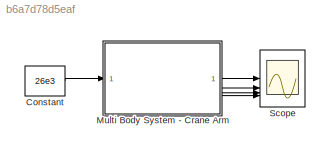
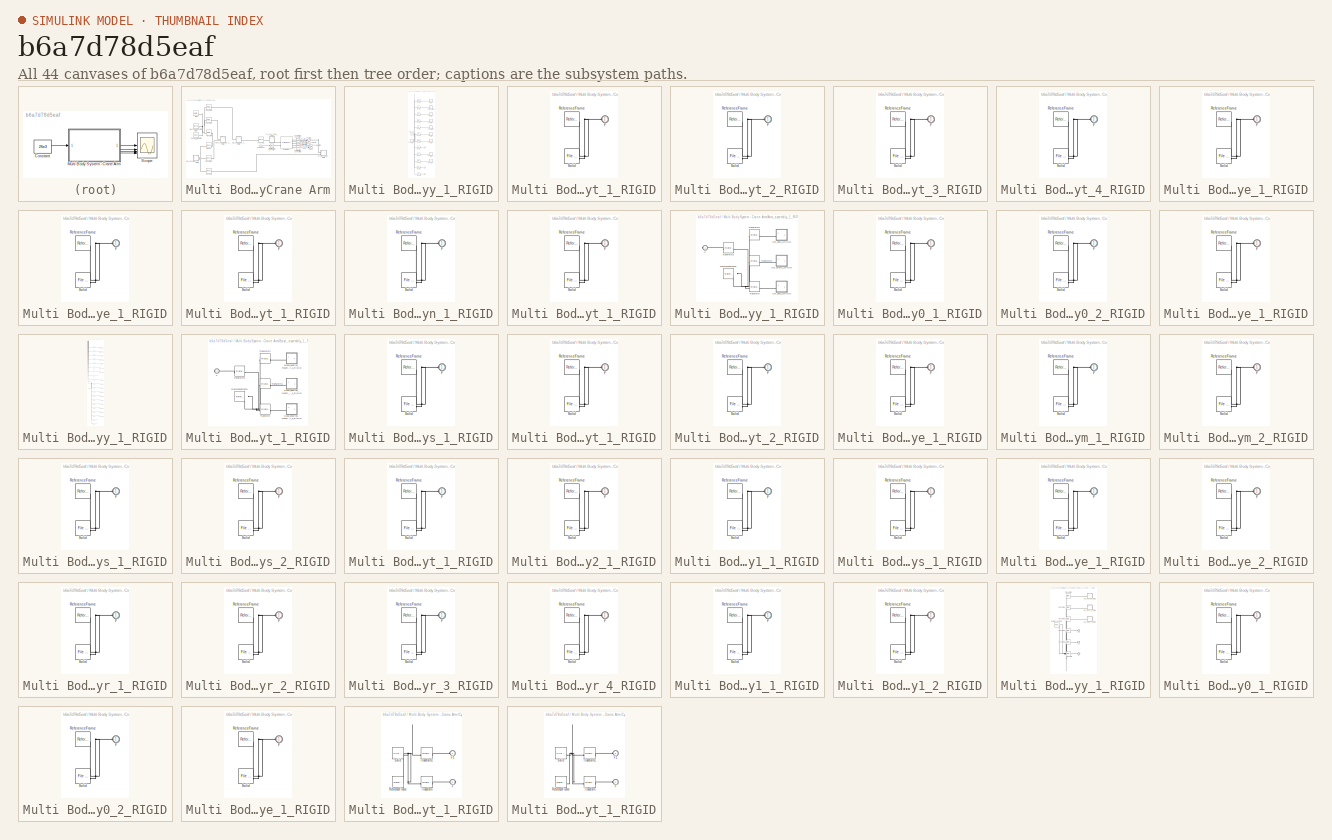
[diagram: thumbnail index - all 44 canvases of the model, root first then tree order]
MODEL slx_b6a7d78d5eaf
KIND model
CONFIG AbsTol = auto
CONFIG EnableMultiTasking = off
CONFIG FixedStep = auto
CONFIG MaxStep = auto
CONFIG MinStep = auto
CONFIG RelTol = 1e-3
CONFIG SampleTimeConstraint = Unconstrained
CONFIG SolverName = VariableStepAuto
CONFIG StartTime = 0.0
CONFIG StopTime = 2.7
WORKSPACE source: external: MATLAB File  (data not in archive)
BLOCK [Constant] Constant
  Value = 26e3
  VectorParams1D = off
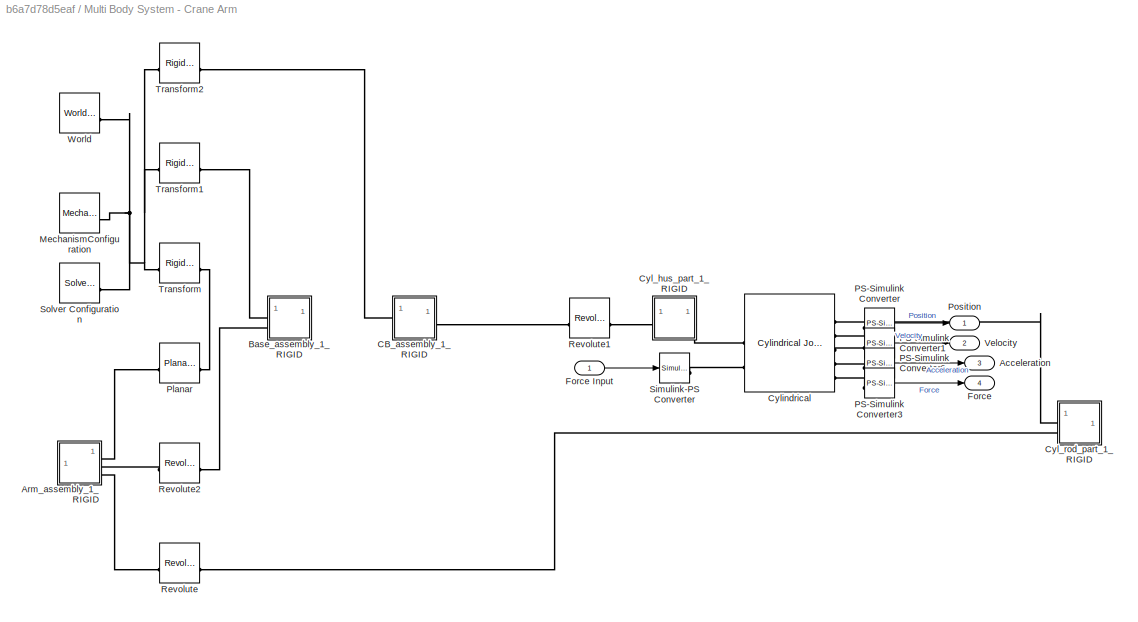
BLOCK [SubSystem] Multi Body System - Crane Arm
BLOCK [Outport] Multi Body System - Crane Arm/Acceleration
  Port = 3
  VectorParamsAs1DForOutWhenUnconnected = off
BLOCK [SubSystem] Multi Body System - Crane Arm/Arm_assembly_1_RIGID
BLOCK [SubSystem] Multi Body System - Crane Arm/Arm_assembly_1_RIGID/Arm_ballast_1_RIGID
BLOCK [PMIOPort] Multi Body System - Crane Arm/Arm_assembly_1_RIGID/Arm_ballast_1_RIGID/F
  Side = Left
BLOCK [Reference] Multi Body System - Crane Arm/Arm_assembly_1_RIGID/Arm_ballast_1_RIGID/ReferenceFrame  REF=sm_lib/Frames and
Transforms/Reference
Frame
  SourceBlock = sm_lib/Frames and\nTransforms/Reference\nFrame
  SourceType = Reference\nFrame
BLOCK [Reference] Multi Body System - Crane Arm/Arm_assembly_1_RIGID/Arm_ballast_1_RIGID/Solid  REF=sm_lib/Body Elements/File Solid
  SourceBlock = sm_lib/Body Elements/File Solid
  SourceType = File Solid
BLOCK [SubSystem] Multi Body System - Crane Arm/Arm_assembly_1_RIGID/Arm_ballast_2_RIGID
BLOCK [PMIOPort] Multi Body System - Crane Arm/Arm_assembly_1_RIGID/Arm_ballast_2_RIGID/F
  Side = Left
BLOCK [Reference] Multi Body System - Crane Arm/Arm_assembly_1_RIGID/Arm_ballast_2_RIGID/ReferenceFrame  REF=sm_lib/Frames and
Transforms/Reference
Frame
  SourceBlock = sm_lib/Frames and\nTransforms/Reference\nFrame
  SourceType = Reference\nFrame
BLOCK [Reference] Multi Body System - Crane Arm/Arm_assembly_1_RIGID/Arm_ballast_2_RIGID/Solid  REF=sm_lib/Body Elements/File Solid
  SourceBlock = sm_lib/Body Elements/File Solid
  SourceType = File Solid
BLOCK [SubSystem] Multi Body System - Crane Arm/Arm_assembly_1_RIGID/Arm_ballast_3_RIGID
BLOCK [PMIOPort] Multi Body System - Crane Arm/Arm_assembly_1_RIGID/Arm_ballast_3_RIGID/F
  Side = Left
BLOCK [Reference] Multi Body System - Crane Arm/Arm_assembly_1_RIGID/Arm_ballast_3_RIGID/ReferenceFrame  REF=sm_lib/Frames and
Transforms/Reference
Frame
  SourceBlock = sm_lib/Frames and\nTransforms/Reference\nFrame
  SourceType = Reference\nFrame
BLOCK [Reference] Multi Body System - Crane Arm/Arm_assembly_1_RIGID/Arm_ballast_3_RIGID/Solid  REF=sm_lib/Body Elements/File Solid
  SourceBlock = sm_lib/Body Elements/File Solid
  SourceType = File Solid
BLOCK [SubSystem] Multi Body System - Crane Arm/Arm_assembly_1_RIGID/Arm_ballast_4_RIGID
BLOCK [PMIOPort] Multi Body System - Crane Arm/Arm_assembly_1_RIGID/Arm_ballast_4_RIGID/F
  Side = Left
BLOCK [Reference] Multi Body System - Crane Arm/Arm_assembly_1_RIGID/Arm_ballast_4_RIGID/ReferenceFrame  REF=sm_lib/Frames and
Transforms/Reference
Frame
  SourceBlock = sm_lib/Frames and\nTransforms/Reference\nFrame
  SourceType = Reference\nFrame
BLOCK [Reference] Multi Body System - Crane Arm/Arm_assembly_1_RIGID/Arm_ballast_4_RIGID/Solid  REF=sm_lib/Body Elements/File Solid
  SourceBlock = sm_lib/Body Elements/File Solid
  SourceType = File Solid
BLOCK [SubSystem] Multi Body System - Crane Arm/Arm_assembly_1_RIGID/Arm_ballast_fixture_1_RIGID
BLOCK [PMIOPort] Multi Body System - Crane Arm/Arm_assembly_1_RIGID/Arm_ballast_fixture_1_RIGID/F
  Side = Left
BLOCK [Reference] Multi Body System - Crane Arm/Arm_assembly_1_RIGID/Arm_ballast_fixture_1_RIGID/ReferenceFrame  REF=sm_lib/Frames and
Transforms/Reference
Frame
  SourceBlock = sm_lib/Frames and\nTransforms/Reference\nFrame
  SourceType = Reference\nFrame
BLOCK [Reference] Multi Body System - Crane Arm/Arm_assembly_1_RIGID/Arm_ballast_fixture_1_RIGID/Solid  REF=sm_lib/Body Elements/File Solid
  SourceBlock = sm_lib/Body Elements/File Solid
  SourceType = File Solid
BLOCK [SubSystem] Multi Body System - Crane Arm/Arm_assembly_1_RIGID/Arm_endplate_1_RIGID
BLOCK [PMIOPort] Multi Body System - Crane Arm/Arm_assembly_1_RIGID/Arm_endplate_1_RIGID/F
  Side = Left
BLOCK [Reference] Multi Body System - Crane Arm/Arm_assembly_1_RIGID/Arm_endplate_1_RIGID/ReferenceFrame  REF=sm_lib/Frames and
Transforms/Reference
Frame
  SourceBlock = sm_lib/Frames and\nTransforms/Reference\nFrame
  SourceType = Reference\nFrame
BLOCK [Reference] Multi Body System - Crane Arm/Arm_assembly_1_RIGID/Arm_endplate_1_RIGID/Solid  REF=sm_lib/Body Elements/File Solid
  SourceBlock = sm_lib/Body Elements/File Solid
  SourceType = File Solid
BLOCK [SubSystem] Multi Body System - Crane Arm/Arm_assembly_1_RIGID/Arm_pipe_reinforcement_1_RIGID
BLOCK [PMIOPort] Multi Body System - Crane Arm/Arm_assembly_1_RIGID/Arm_pipe_reinforcement_1_RIGID/F
  Side = Left
BLOCK [Reference] Multi Body System - Crane Arm/Arm_assembly_1_RIGID/Arm_pipe_reinforcement_1_RIGID/ReferenceFrame  REF=sm_lib/Frames and
Transforms/Reference
Frame
  SourceBlock = sm_lib/Frames and\nTransforms/Reference\nFrame
  SourceType = Reference\nFrame
BLOCK [Reference] Multi Body System - Crane Arm/Arm_assembly_1_RIGID/Arm_pipe_reinforcement_1_RIGID/Solid  REF=sm_lib/Body Elements/File Solid
  SourceBlock = sm_lib/Body Elements/File Solid
  SourceType = File Solid
BLOCK [SubSystem] Multi Body System - Crane Arm/Arm_assembly_1_RIGID/Arm_profil_main_1_RIGID
BLOCK [PMIOPort] Multi Body System - Crane Arm/Arm_assembly_1_RIGID/Arm_profil_main_1_RIGID/F
  Side = Left
BLOCK [Reference] Multi Body System - Crane Arm/Arm_assembly_1_RIGID/Arm_profil_main_1_RIGID/ReferenceFrame  REF=sm_lib/Frames and
Transforms/Reference
Frame
  SourceBlock = sm_lib/Frames and\nTransforms/Reference\nFrame
  SourceType = Reference\nFrame
BLOCK [Reference] Multi Body System - Crane Arm/Arm_assembly_1_RIGID/Arm_profil_main_1_RIGID/Solid  REF=sm_lib/Body Elements/File Solid
  SourceBlock = sm_lib/Body Elements/File Solid
  SourceType = File Solid
BLOCK [SubSystem] Multi Body System - Crane Arm/Arm_assembly_1_RIGID/Arm_shaft_1_RIGID
BLOCK [PMIOPort] Multi Body System - Crane Arm/Arm_assembly_1_RIGID/Arm_shaft_1_RIGID/F
  Side = Left
BLOCK [Reference] Multi Body System - Crane Arm/Arm_assembly_1_RIGID/Arm_shaft_1_RIGID/ReferenceFrame  REF=sm_lib/Frames and
Transforms/Reference
Frame
  SourceBlock = sm_lib/Frames and\nTransforms/Reference\nFrame
  SourceType = Reference\nFrame
BLOCK [Reference] Multi Body System - Crane Arm/Arm_assembly_1_RIGID/Arm_shaft_1_RIGID/Solid  REF=sm_lib/Body Elements/File Solid
  SourceBlock = sm_lib/Body Elements/File Solid
  SourceType = File Solid
BLOCK [SubSystem] Multi Body System - Crane Arm/Arm_assembly_1_RIGID/CB_assembly_1_RIGID
BLOCK [SubSystem] Multi Body System - Crane Arm/Arm_assembly_1_RIGID/CB_assembly_1_RIGID/CB_850_1_RIGID
BLOCK [PMIOPort] Multi Body System - Crane Arm/Arm_assembly_1_RIGID/CB_assembly_1_RIGID/CB_850_1_RIGID/F
  Side = Left
BLOCK [Reference] Multi Body System - Crane Arm/Arm_assembly_1_RIGID/CB_assembly_1_RIGID/CB_850_1_RIGID/ReferenceFrame  REF=sm_lib/Frames and
Transforms/Reference
Frame
  SourceBlock = sm_lib/Frames and\nTransforms/Reference\nFrame
  SourceType = Reference\nFrame
BLOCK [Reference] Multi Body System - Crane Arm/Arm_assembly_1_RIGID/CB_assembly_1_RIGID/CB_850_1_RIGID/Solid  REF=sm_lib/Body Elements/File Solid
  SourceBlock = sm_lib/Body Elements/File Solid
  SourceType = File Solid
BLOCK [SubSystem] Multi Body System - Crane Arm/Arm_assembly_1_RIGID/CB_assembly_1_RIGID/CB_850_2_RIGID
BLOCK [PMIOPort] Multi Body System - Crane Arm/Arm_assembly_1_RIGID/CB_assembly_1_RIGID/CB_850_2_RIGID/F
  Side = Left
BLOCK [Reference] Multi Body System - Crane Arm/Arm_assembly_1_RIGID/CB_assembly_1_RIGID/CB_850_2_RIGID/ReferenceFrame  REF=sm_lib/Frames and
Transforms/Reference
Frame
  SourceBlock = sm_lib/Frames and\nTransforms/Reference\nFrame
  SourceType = Reference\nFrame
BLOCK [Reference] Multi Body System - Crane Arm/Arm_assembly_1_RIGID/CB_assembly_1_RIGID/CB_850_2_RIGID/Solid  REF=sm_lib/Body Elements/File Solid
  SourceBlock = sm_lib/Body Elements/File Solid
  SourceType = File Solid
BLOCK [SubSystem] Multi Body System - Crane Arm/Arm_assembly_1_RIGID/CB_assembly_1_RIGID/CB_plate_1_RIGID
BLOCK [PMIOPort] Multi Body System - Crane Arm/Arm_assembly_1_RIGID/CB_assembly_1_RIGID/CB_plate_1_RIGID/F
  Side = Left
BLOCK [Reference] Multi Body System - Crane Arm/Arm_assembly_1_RIGID/CB_assembly_1_RIGID/CB_plate_1_RIGID/ReferenceFrame  REF=sm_lib/Frames and
Transforms/Reference
Frame
  SourceBlock = sm_lib/Frames and\nTransforms/Reference\nFrame
  SourceType = Reference\nFrame
BLOCK [Reference] Multi Body System - Crane Arm/Arm_assembly_1_RIGID/CB_assembly_1_RIGID/CB_plate_1_RIGID/Solid  REF=sm_lib/Body Elements/File Solid
  SourceBlock = sm_lib/Body Elements/File Solid
  SourceType = File Solid
BLOCK [PMIOPort] Multi Body System - Crane Arm/Arm_assembly_1_RIGID/CB_assembly_1_RIGID/F
  Side = Right
BLOCK [Reference] Multi Body System - Crane Arm/Arm_assembly_1_RIGID/CB_assembly_1_RIGID/ReferenceFrame  REF=sm_lib/Frames and
Transforms/Reference
Frame
  SourceBlock = sm_lib/Frames and\nTransforms/Reference\nFrame
  SourceType = Reference\nFrame
BLOCK [Reference] Multi Body System - Crane Arm/Arm_assembly_1_RIGID/CB_assembly_1_RIGID/Transform  REF=sm_lib/Frames and
Transforms/Rigid
Transform
  SourceBlock = sm_lib/Frames and\nTransforms/Rigid\nTransform
  SourceType = Rigid\nTransform
BLOCK [Reference] Multi Body System - Crane Arm/Arm_assembly_1_RIGID/CB_assembly_1_RIGID/Transform1  REF=sm_lib/Frames and
Transforms/Rigid
Transform
  SourceBlock = sm_lib/Frames and\nTransforms/Rigid\nTransform
  SourceType = Rigid\nTransform
BLOCK [Reference] Multi Body System - Crane Arm/Arm_assembly_1_RIGID/CB_assembly_1_RIGID/Transform2  REF=sm_lib/Frames and
Transforms/Rigid
Transform
  SourceBlock = sm_lib/Frames and\nTransforms/Rigid\nTransform
  SourceType = Rigid\nTransform
BLOCK [Reference] Multi Body System - Crane Arm/Arm_assembly_1_RIGID/CB_assembly_1_RIGID/Transform3  REF=sm_lib/Frames and
Transforms/Rigid
Transform
  SourceBlock = sm_lib/Frames and\nTransforms/Rigid\nTransform
  SourceType = Rigid\nTransform
BLOCK [PMIOPort] Multi Body System - Crane Arm/Arm_assembly_1_RIGID/F
  Port = 3
  Side = Right
BLOCK [PMIOPort] Multi Body System - Crane Arm/Arm_assembly_1_RIGID/F1
  Port = 2
  Side = Right
BLOCK [PMIOPort] Multi Body System - Crane Arm/Arm_assembly_1_RIGID/F2
  Side = Right
BLOCK [Reference] Multi Body System - Crane Arm/Arm_assembly_1_RIGID/ReferenceFrame  REF=sm_lib/Frames and
Transforms/Reference
Frame
  SourceBlock = sm_lib/Frames and\nTransforms/Reference\nFrame
  SourceType = Reference\nFrame
BLOCK [Reference] Multi Body System - Crane Arm/Arm_assembly_1_RIGID/Transform  REF=sm_lib/Frames and
Transforms/Rigid
Transform
  SourceBlock = sm_lib/Frames and\nTransforms/Rigid\nTransform
  SourceType = Rigid\nTransform
BLOCK [Reference] Multi Body System - Crane Arm/Arm_assembly_1_RIGID/Transform1  REF=sm_lib/Frames and
Transforms/Rigid
Transform
  SourceBlock = sm_lib/Frames and\nTransforms/Rigid\nTransform
  SourceType = Rigid\nTransform
BLOCK [Reference] Multi Body System - Crane Arm/Arm_assembly_1_RIGID/Transform10  REF=sm_lib/Frames and
Transforms/Rigid
Transform
  SourceBlock = sm_lib/Frames and\nTransforms/Rigid\nTransform
  SourceType = Rigid\nTransform
BLOCK [Reference] Multi Body System - Crane Arm/Arm_assembly_1_RIGID/Transform11  REF=sm_lib/Frames and
Transforms/Rigid
Transform
  SourceBlock = sm_lib/Frames and\nTransforms/Rigid\nTransform
  SourceType = Rigid\nTransform
BLOCK [Reference] Multi Body System - Crane Arm/Arm_assembly_1_RIGID/Transform2  REF=sm_lib/Frames and
Transforms/Rigid
Transform
  SourceBlock = sm_lib/Frames and\nTransforms/Rigid\nTransform
  SourceType = Rigid\nTransform
BLOCK [Reference] Multi Body System - Crane Arm/Arm_assembly_1_RIGID/Transform3  REF=sm_lib/Frames and
Transforms/Rigid
Transform
  SourceBlock = sm_lib/Frames and\nTransforms/Rigid\nTransform
  SourceType = Rigid\nTransform
BLOCK [Reference] Multi Body System - Crane Arm/Arm_assembly_1_RIGID/Transform4  REF=sm_lib/Frames and
Transforms/Rigid
Transform
  SourceBlock = sm_lib/Frames and\nTransforms/Rigid\nTransform
  SourceType = Rigid\nTransform
BLOCK [Reference] Multi Body System - Crane Arm/Arm_assembly_1_RIGID/Transform5  REF=sm_lib/Frames and
Transforms/Rigid
Transform
  SourceBlock = sm_lib/Frames and\nTransforms/Rigid\nTransform
  SourceType = Rigid\nTransform
BLOCK [Reference] Multi Body System - Crane Arm/Arm_assembly_1_RIGID/Transform6  REF=sm_lib/Frames and
Transforms/Rigid
Transform
  SourceBlock = sm_lib/Frames and\nTransforms/Rigid\nTransform
  SourceType = Rigid\nTransform
BLOCK [Reference] Multi Body System - Crane Arm/Arm_assembly_1_RIGID/Transform7  REF=sm_lib/Frames and
Transforms/Rigid
Transform
  SourceBlock = sm_lib/Frames and\nTransforms/Rigid\nTransform
  SourceType = Rigid\nTransform
BLOCK [Reference] Multi Body System - Crane Arm/Arm_assembly_1_RIGID/Transform8  REF=sm_lib/Frames and
Transforms/Rigid
Transform
  SourceBlock = sm_lib/Frames and\nTransforms/Rigid\nTransform
  SourceType = Rigid\nTransform
BLOCK [Reference] Multi Body System - Crane Arm/Arm_assembly_1_RIGID/Transform9  REF=sm_lib/Frames and
Transforms/Rigid
Transform
  SourceBlock = sm_lib/Frames and\nTransforms/Rigid\nTransform
  SourceType = Rigid\nTransform
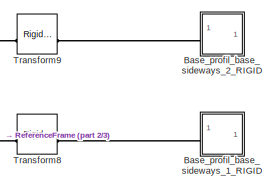
[diagram: Multi Body System - Crane Arm/Base_assembly_1_RIGID - part 1/3, top center region]
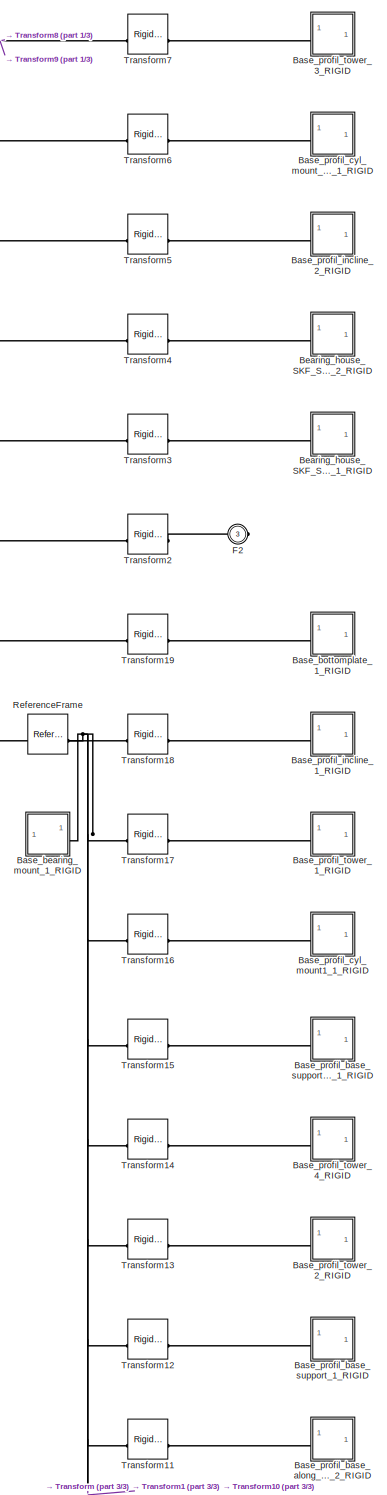
[diagram: Multi Body System - Crane Arm/Base_assembly_1_RIGID - part 2/3, full width, middle band]
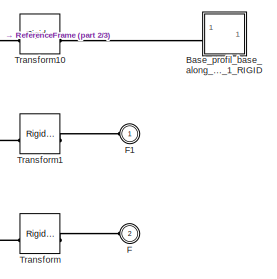
[diagram: Multi Body System - Crane Arm/Base_assembly_1_RIGID - part 3/3, bottom center region]
BLOCK [SubSystem] Multi Body System - Crane Arm/Base_assembly_1_RIGID
BLOCK [SubSystem] Multi Body System - Crane Arm/Base_assembly_1_RIGID/Base_bearing_mount_1_RIGID
BLOCK [SubSystem] Multi Body System - Crane Arm/Base_assembly_1_RIGID/Base_bearing_mount_1_RIGID/Base_bearing_mount_sideways_1_RIGID
BLOCK [PMIOPort] Multi Body System - Crane Arm/Base_assembly_1_RIGID/Base_bearing_mount_1_RIGID/Base_bearing_mount_sideways_1_RIGID/F
  Side = Left
BLOCK [Reference] Multi Body System - Crane Arm/Base_assembly_1_RIGID/Base_bearing_mount_1_RIGID/Base_bearing_mount_sideways_1_RIGID/ReferenceFrame  REF=sm_lib/Frames and
Transforms/Reference
Frame
  SourceBlock = sm_lib/Frames and\nTransforms/Reference\nFrame
  SourceType = Reference\nFrame
BLOCK [Reference] Multi Body System - Crane Arm/Base_assembly_1_RIGID/Base_bearing_mount_1_RIGID/Base_bearing_mount_sideways_1_RIGID/Solid  REF=sm_lib/Body Elements/File Solid
  SourceBlock = sm_lib/Body Elements/File Solid
  SourceType = File Solid
BLOCK [SubSystem] Multi Body System - Crane Arm/Base_assembly_1_RIGID/Base_bearing_mount_1_RIGID/Base_bearing_mount_support_1_RIGID
BLOCK [PMIOPort] Multi Body System - Crane Arm/Base_assembly_1_RIGID/Base_bearing_mount_1_RIGID/Base_bearing_mount_support_1_RIGID/F
  Side = Left
BLOCK [Reference] Multi Body System - Crane Arm/Base_assembly_1_RIGID/Base_bearing_mount_1_RIGID/Base_bearing_mount_support_1_RIGID/ReferenceFrame  REF=sm_lib/Frames and
Transforms/Reference
Frame
  SourceBlock = sm_lib/Frames and\nTransforms/Reference\nFrame
  SourceType = Reference\nFrame
BLOCK [Reference] Multi Body System - Crane Arm/Base_assembly_1_RIGID/Base_bearing_mount_1_RIGID/Base_bearing_mount_support_1_RIGID/Solid  REF=sm_lib/Body Elements/File Solid
  SourceBlock = sm_lib/Body Elements/File Solid
  SourceType = File Solid
BLOCK [SubSystem] Multi Body System - Crane Arm/Base_assembly_1_RIGID/Base_bearing_mount_1_RIGID/Base_bearing_mount_support_2_RIGID
BLOCK [PMIOPort] Multi Body System - Crane Arm/Base_assembly_1_RIGID/Base_bearing_mount_1_RIGID/Base_bearing_mount_support_2_RIGID/F
  Side = Left
BLOCK [Reference] Multi Body System - Crane Arm/Base_assembly_1_RIGID/Base_bearing_mount_1_RIGID/Base_bearing_mount_support_2_RIGID/ReferenceFrame  REF=sm_lib/Frames and
Transforms/Reference
Frame
  SourceBlock = sm_lib/Frames and\nTransforms/Reference\nFrame
  SourceType = Reference\nFrame
BLOCK [Reference] Multi Body System - Crane Arm/Base_assembly_1_RIGID/Base_bearing_mount_1_RIGID/Base_bearing_mount_support_2_RIGID/Solid  REF=sm_lib/Body Elements/File Solid
  SourceBlock = sm_lib/Body Elements/File Solid
  SourceType = File Solid
BLOCK [PMIOPort] Multi Body System - Crane Arm/Base_assembly_1_RIGID/Base_bearing_mount_1_RIGID/F
  Side = Right
BLOCK [Reference] Multi Body System - Crane Arm/Base_assembly_1_RIGID/Base_bearing_mount_1_RIGID/ReferenceFrame  REF=sm_lib/Frames and
Transforms/Reference
Frame
  SourceBlock = sm_lib/Frames and\nTransforms/Reference\nFrame
  SourceType = Reference\nFrame
BLOCK [Reference] Multi Body System - Crane Arm/Base_assembly_1_RIGID/Base_bearing_mount_1_RIGID/Transform  REF=sm_lib/Frames and
Transforms/Rigid
Transform
  SourceBlock = sm_lib/Frames and\nTransforms/Rigid\nTransform
  SourceType = Rigid\nTransform
BLOCK [Reference] Multi Body System - Crane Arm/Base_assembly_1_RIGID/Base_bearing_mount_1_RIGID/Transform1  REF=sm_lib/Frames and
Transforms/Rigid
Transform
  SourceBlock = sm_lib/Frames and\nTransforms/Rigid\nTransform
  SourceType = Rigid\nTransform
BLOCK [Reference] Multi Body System - Crane Arm/Base_assembly_1_RIGID/Base_bearing_mount_1_RIGID/Transform2  REF=sm_lib/Frames and
Transforms/Rigid
Transform
  SourceBlock = sm_lib/Frames and\nTransforms/Rigid\nTransform
  SourceType = Rigid\nTransform
BLOCK [Reference] Multi Body System - Crane Arm/Base_assembly_1_RIGID/Base_bearing_mount_1_RIGID/Transform3  REF=sm_lib/Frames and
Transforms/Rigid
Transform
  SourceBlock = sm_lib/Frames and\nTransforms/Rigid\nTransform
  SourceType = Rigid\nTransform
BLOCK [SubSystem] Multi Body System - Crane Arm/Base_assembly_1_RIGID/Base_bottomplate_1_RIGID
BLOCK [PMIOPort] Multi Body System - Crane Arm/Base_assembly_1_RIGID/Base_bottomplate_1_RIGID/F
  Side = Left
BLOCK [Reference] Multi Body System - Crane Arm/Base_assembly_1_RIGID/Base_bottomplate_1_RIGID/ReferenceFrame  REF=sm_lib/Frames and
Transforms/Reference
Frame
  SourceBlock = sm_lib/Frames and\nTransforms/Reference\nFrame
  SourceType = Reference\nFrame
BLOCK [Reference] Multi Body System - Crane Arm/Base_assembly_1_RIGID/Base_bottomplate_1_RIGID/Solid  REF=sm_lib/Body Elements/File Solid
  SourceBlock = sm_lib/Body Elements/File Solid
  SourceType = File Solid
BLOCK [SubSystem] Multi Body System - Crane Arm/Base_assembly_1_RIGID/Base_profil_base_along_arm_1_RIGID
BLOCK [PMIOPort] Multi Body System - Crane Arm/Base_assembly_1_RIGID/Base_profil_base_along_arm_1_RIGID/F
  Side = Left
BLOCK [Reference] Multi Body System - Crane Arm/Base_assembly_1_RIGID/Base_profil_base_along_arm_1_RIGID/ReferenceFrame  REF=sm_lib/Frames and
Transforms/Reference
Frame
  SourceBlock = sm_lib/Frames and\nTransforms/Reference\nFrame
  SourceType = Reference\nFrame
BLOCK [Reference] Multi Body System - Crane Arm/Base_assembly_1_RIGID/Base_profil_base_along_arm_1_RIGID/Solid  REF=sm_lib/Body Elements/File Solid
  SourceBlock = sm_lib/Body Elements/File Solid
  SourceType = File Solid
BLOCK [SubSystem] Multi Body System - Crane Arm/Base_assembly_1_RIGID/Base_profil_base_along_arm_2_RIGID
BLOCK [PMIOPort] Multi Body System - Crane Arm/Base_assembly_1_RIGID/Base_profil_base_along_arm_2_RIGID/F
  Side = Left
BLOCK [Reference] Multi Body System - Crane Arm/Base_assembly_1_RIGID/Base_profil_base_along_arm_2_RIGID/ReferenceFrame  REF=sm_lib/Frames and
Transforms/Reference
Frame
  SourceBlock = sm_lib/Frames and\nTransforms/Reference\nFrame
  SourceType = Reference\nFrame
BLOCK [Reference] Multi Body System - Crane Arm/Base_assembly_1_RIGID/Base_profil_base_along_arm_2_RIGID/Solid  REF=sm_lib/Body Elements/File Solid
  SourceBlock = sm_lib/Body Elements/File Solid
  SourceType = File Solid
BLOCK [SubSystem] Multi Body System - Crane Arm/Base_assembly_1_RIGID/Base_profil_base_sideways_1_RIGID
BLOCK [PMIOPort] Multi Body System - Crane Arm/Base_assembly_1_RIGID/Base_profil_base_sideways_1_RIGID/F
  Side = Left
BLOCK [Reference] Multi Body System - Crane Arm/Base_assembly_1_RIGID/Base_profil_base_sideways_1_RIGID/ReferenceFrame  REF=sm_lib/Frames and
Transforms/Reference
Frame
  SourceBlock = sm_lib/Frames and\nTransforms/Reference\nFrame
  SourceType = Reference\nFrame
BLOCK [Reference] Multi Body System - Crane Arm/Base_assembly_1_RIGID/Base_profil_base_sideways_1_RIGID/Solid  REF=sm_lib/Body Elements/File Solid
  SourceBlock = sm_lib/Body Elements/File Solid
  SourceType = File Solid
BLOCK [SubSystem] Multi Body System - Crane Arm/Base_assembly_1_RIGID/Base_profil_base_sideways_2_RIGID
BLOCK [PMIOPort] Multi Body System - Crane Arm/Base_assembly_1_RIGID/Base_profil_base_sideways_2_RIGID/F
  Side = Left
BLOCK [Reference] Multi Body System - Crane Arm/Base_assembly_1_RIGID/Base_profil_base_sideways_2_RIGID/ReferenceFrame  REF=sm_lib/Frames and
Transforms/Reference
Frame
  SourceBlock = sm_lib/Frames and\nTransforms/Reference\nFrame
  SourceType = Reference\nFrame
BLOCK [Reference] Multi Body System - Crane Arm/Base_assembly_1_RIGID/Base_profil_base_sideways_2_RIGID/Solid  REF=sm_lib/Body Elements/File Solid
  SourceBlock = sm_lib/Body Elements/File Solid
  SourceType = File Solid
BLOCK [SubSystem] Multi Body System - Crane Arm/Base_assembly_1_RIGID/Base_profil_base_support_1_RIGID
BLOCK [PMIOPort] Multi Body System - Crane Arm/Base_assembly_1_RIGID/Base_profil_base_support_1_RIGID/F
  Side = Left
BLOCK [Reference] Multi Body System - Crane Arm/Base_assembly_1_RIGID/Base_profil_base_support_1_RIGID/ReferenceFrame  REF=sm_lib/Frames and
Transforms/Reference
Frame
  SourceBlock = sm_lib/Frames and\nTransforms/Reference\nFrame
  SourceType = Reference\nFrame
BLOCK [Reference] Multi Body System - Crane Arm/Base_assembly_1_RIGID/Base_profil_base_support_1_RIGID/Solid  REF=sm_lib/Body Elements/File Solid
  SourceBlock = sm_lib/Body Elements/File Solid
  SourceType = File Solid
BLOCK [SubSystem] Multi Body System - Crane Arm/Base_assembly_1_RIGID/Base_profil_base_support_2_1_RIGID
BLOCK [PMIOPort] Multi Body System - Crane Arm/Base_assembly_1_RIGID/Base_profil_base_support_2_1_RIGID/F
  Side = Left
BLOCK [Reference] Multi Body System - Crane Arm/Base_assembly_1_RIGID/Base_profil_base_support_2_1_RIGID/ReferenceFrame  REF=sm_lib/Frames and
Transforms/Reference
Frame
  SourceBlock = sm_lib/Frames and\nTransforms/Reference\nFrame
  SourceType = Reference\nFrame
BLOCK [Reference] Multi Body System - Crane Arm/Base_assembly_1_RIGID/Base_profil_base_support_2_1_RIGID/Solid  REF=sm_lib/Body Elements/File Solid
  SourceBlock = sm_lib/Body Elements/File Solid
  SourceType = File Solid
BLOCK [SubSystem] Multi Body System - Crane Arm/Base_assembly_1_RIGID/Base_profil_cyl_mount1_1_RIGID
BLOCK [PMIOPort] Multi Body System - Crane Arm/Base_assembly_1_RIGID/Base_profil_cyl_mount1_1_RIGID/F
  Side = Left
BLOCK [Reference] Multi Body System - Crane Arm/Base_assembly_1_RIGID/Base_profil_cyl_mount1_1_RIGID/ReferenceFrame  REF=sm_lib/Frames and
Transforms/Reference
Frame
  SourceBlock = sm_lib/Frames and\nTransforms/Reference\nFrame
  SourceType = Reference\nFrame
BLOCK [Reference] Multi Body System - Crane Arm/Base_assembly_1_RIGID/Base_profil_cyl_mount1_1_RIGID/Solid  REF=sm_lib/Body Elements/File Solid
  SourceBlock = sm_lib/Body Elements/File Solid
  SourceType = File Solid
BLOCK [SubSystem] Multi Body System - Crane Arm/Base_assembly_1_RIGID/Base_profil_cyl_mount_support_sideways_1_RIGID
BLOCK [PMIOPort] Multi Body System - Crane Arm/Base_assembly_1_RIGID/Base_profil_cyl_mount_support_sideways_1_RIGID/F
  Side = Left
BLOCK [Reference] Multi Body System - Crane Arm/Base_assembly_1_RIGID/Base_profil_cyl_mount_support_sideways_1_RIGID/ReferenceFrame  REF=sm_lib/Frames and
Transforms/Reference
Frame
  SourceBlock = sm_lib/Frames and\nTransforms/Reference\nFrame
  SourceType = Reference\nFrame
BLOCK [Reference] Multi Body System - Crane Arm/Base_assembly_1_RIGID/Base_profil_cyl_mount_support_sideways_1_RIGID/Solid  REF=sm_lib/Body Elements/File Solid
  SourceBlock = sm_lib/Body Elements/File Solid
  SourceType = File Solid
BLOCK [SubSystem] Multi Body System - Crane Arm/Base_assembly_1_RIGID/Base_profil_incline_1_RIGID
BLOCK [PMIOPort] Multi Body System - Crane Arm/Base_assembly_1_RIGID/Base_profil_incline_1_RIGID/F
  Side = Left
BLOCK [Reference] Multi Body System - Crane Arm/Base_assembly_1_RIGID/Base_profil_incline_1_RIGID/ReferenceFrame  REF=sm_lib/Frames and
Transforms/Reference
Frame
  SourceBlock = sm_lib/Frames and\nTransforms/Reference\nFrame
  SourceType = Reference\nFrame
BLOCK [Reference] Multi Body System - Crane Arm/Base_assembly_1_RIGID/Base_profil_incline_1_RIGID/Solid  REF=sm_lib/Body Elements/File Solid
  SourceBlock = sm_lib/Body Elements/File Solid
  SourceType = File Solid
BLOCK [SubSystem] Multi Body System - Crane Arm/Base_assembly_1_RIGID/Base_profil_incline_2_RIGID
BLOCK [PMIOPort] Multi Body System - Crane Arm/Base_assembly_1_RIGID/Base_profil_incline_2_RIGID/F
  Side = Left
BLOCK [Reference] Multi Body System - Crane Arm/Base_assembly_1_RIGID/Base_profil_incline_2_RIGID/ReferenceFrame  REF=sm_lib/Frames and
Transforms/Reference
Frame
  SourceBlock = sm_lib/Frames and\nTransforms/Reference\nFrame
  SourceType = Reference\nFrame
BLOCK [Reference] Multi Body System - Crane Arm/Base_assembly_1_RIGID/Base_profil_incline_2_RIGID/Solid  REF=sm_lib/Body Elements/File Solid
  SourceBlock = sm_lib/Body Elements/File Solid
  SourceType = File Solid
BLOCK [SubSystem] Multi Body System - Crane Arm/Base_assembly_1_RIGID/Base_profil_tower_1_RIGID
BLOCK [PMIOPort] Multi Body System - Crane Arm/Base_assembly_1_RIGID/Base_profil_tower_1_RIGID/F
  Side = Left
BLOCK [Reference] Multi Body System - Crane Arm/Base_assembly_1_RIGID/Base_profil_tower_1_RIGID/ReferenceFrame  REF=sm_lib/Frames and
Transforms/Reference
Frame
  SourceBlock = sm_lib/Frames and\nTransforms/Reference\nFrame
  SourceType = Reference\nFrame
BLOCK [Reference] Multi Body System - Crane Arm/Base_assembly_1_RIGID/Base_profil_tower_1_RIGID/Solid  REF=sm_lib/Body Elements/File Solid
  SourceBlock = sm_lib/Body Elements/File Solid
  SourceType = File Solid
BLOCK [SubSystem] Multi Body System - Crane Arm/Base_assembly_1_RIGID/Base_profil_tower_2_RIGID
BLOCK [PMIOPort] Multi Body System - Crane Arm/Base_assembly_1_RIGID/Base_profil_tower_2_RIGID/F
  Side = Left
BLOCK [Reference] Multi Body System - Crane Arm/Base_assembly_1_RIGID/Base_profil_tower_2_RIGID/ReferenceFrame  REF=sm_lib/Frames and
Transforms/Reference
Frame
  SourceBlock = sm_lib/Frames and\nTransforms/Reference\nFrame
  SourceType = Reference\nFrame
BLOCK [Reference] Multi Body System - Crane Arm/Base_assembly_1_RIGID/Base_profil_tower_2_RIGID/Solid  REF=sm_lib/Body Elements/File Solid
  SourceBlock = sm_lib/Body Elements/File Solid
  SourceType = File Solid
BLOCK [SubSystem] Multi Body System - Crane Arm/Base_assembly_1_RIGID/Base_profil_tower_3_RIGID
BLOCK [PMIOPort] Multi Body System - Crane Arm/Base_assembly_1_RIGID/Base_profil_tower_3_RIGID/F
  Side = Left
BLOCK [Reference] Multi Body System - Crane Arm/Base_assembly_1_RIGID/Base_profil_tower_3_RIGID/ReferenceFrame  REF=sm_lib/Frames and
Transforms/Reference
Frame
  SourceBlock = sm_lib/Frames and\nTransforms/Reference\nFrame
  SourceType = Reference\nFrame
BLOCK [Reference] Multi Body System - Crane Arm/Base_assembly_1_RIGID/Base_profil_tower_3_RIGID/Solid  REF=sm_lib/Body Elements/File Solid
  SourceBlock = sm_lib/Body Elements/File Solid
  SourceType = File Solid
BLOCK [SubSystem] Multi Body System - Crane Arm/Base_assembly_1_RIGID/Base_profil_tower_4_RIGID
BLOCK [PMIOPort] Multi Body System - Crane Arm/Base_assembly_1_RIGID/Base_profil_tower_4_RIGID/F
  Side = Left
BLOCK [Reference] Multi Body System - Crane Arm/Base_assembly_1_RIGID/Base_profil_tower_4_RIGID/ReferenceFrame  REF=sm_lib/Frames and
Transforms/Reference
Frame
  SourceBlock = sm_lib/Frames and\nTransforms/Reference\nFrame
  SourceType = Reference\nFrame
BLOCK [Reference] Multi Body System - Crane Arm/Base_assembly_1_RIGID/Base_profil_tower_4_RIGID/Solid  REF=sm_lib/Body Elements/File Solid
  SourceBlock = sm_lib/Body Elements/File Solid
  SourceType = File Solid
BLOCK [SubSystem] Multi Body System - Crane Arm/Base_assembly_1_RIGID/Bearing_house_SKF_SNA_513_611_1_RIGID
BLOCK [PMIOPort] Multi Body System - Crane Arm/Base_assembly_1_RIGID/Bearing_house_SKF_SNA_513_611_1_RIGID/F
  Side = Left
BLOCK [Reference] Multi Body System - Crane Arm/Base_assembly_1_RIGID/Bearing_house_SKF_SNA_513_611_1_RIGID/ReferenceFrame  REF=sm_lib/Frames and
Transforms/Reference
Frame
  SourceBlock = sm_lib/Frames and\nTransforms/Reference\nFrame
  SourceType = Reference\nFrame
BLOCK [Reference] Multi Body System - Crane Arm/Base_assembly_1_RIGID/Bearing_house_SKF_SNA_513_611_1_RIGID/Solid  REF=sm_lib/Body Elements/File Solid
  SourceBlock = sm_lib/Body Elements/File Solid
  SourceType = File Solid
BLOCK [SubSystem] Multi Body System - Crane Arm/Base_assembly_1_RIGID/Bearing_house_SKF_SNA_513_611_2_RIGID
BLOCK [PMIOPort] Multi Body System - Crane Arm/Base_assembly_1_RIGID/Bearing_house_SKF_SNA_513_611_2_RIGID/F
  Side = Left
BLOCK [Reference] Multi Body System - Crane Arm/Base_assembly_1_RIGID/Bearing_house_SKF_SNA_513_611_2_RIGID/ReferenceFrame  REF=sm_lib/Frames and
Transforms/Reference
Frame
  SourceBlock = sm_lib/Frames and\nTransforms/Reference\nFrame
  SourceType = Reference\nFrame
BLOCK [Reference] Multi Body System - Crane Arm/Base_assembly_1_RIGID/Bearing_house_SKF_SNA_513_611_2_RIGID/Solid  REF=sm_lib/Body Elements/File Solid
  SourceBlock = sm_lib/Body Elements/File Solid
  SourceType = File Solid
BLOCK [PMIOPort] Multi Body System - Crane Arm/Base_assembly_1_RIGID/F
  Port = 2
  Side = Left
BLOCK [PMIOPort] Multi Body System - Crane Arm/Base_assembly_1_RIGID/F1
  Side = Left
BLOCK [PMIOPort] Multi Body System - Crane Arm/Base_assembly_1_RIGID/F2
  Port = 3
  Side = Right
BLOCK [Reference] Multi Body System - Crane Arm/Base_assembly_1_RIGID/ReferenceFrame  REF=sm_lib/Frames and
Transforms/Reference
Frame
  SourceBlock = sm_lib/Frames and\nTransforms/Reference\nFrame
  SourceType = Reference\nFrame
BLOCK [Reference] Multi Body System - Crane Arm/Base_assembly_1_RIGID/Transform  REF=sm_lib/Frames and
Transforms/Rigid
Transform
  SourceBlock = sm_lib/Frames and\nTransforms/Rigid\nTransform
  SourceType = Rigid\nTransform
BLOCK [Reference] Multi Body System - Crane Arm/Base_assembly_1_RIGID/Transform1  REF=sm_lib/Frames and
Transforms/Rigid
Transform
  SourceBlock = sm_lib/Frames and\nTransforms/Rigid\nTransform
  SourceType = Rigid\nTransform
BLOCK [Reference] Multi Body System - Crane Arm/Base_assembly_1_RIGID/Transform10  REF=sm_lib/Frames and
Transforms/Rigid
Transform
  SourceBlock = sm_lib/Frames and\nTransforms/Rigid\nTransform
  SourceType = Rigid\nTransform
BLOCK [Reference] Multi Body System - Crane Arm/Base_assembly_1_RIGID/Transform11  REF=sm_lib/Frames and
Transforms/Rigid
Transform
  SourceBlock = sm_lib/Frames and\nTransforms/Rigid\nTransform
  SourceType = Rigid\nTransform
BLOCK [Reference] Multi Body System - Crane Arm/Base_assembly_1_RIGID/Transform12  REF=sm_lib/Frames and
Transforms/Rigid
Transform
  SourceBlock = sm_lib/Frames and\nTransforms/Rigid\nTransform
  SourceType = Rigid\nTransform
BLOCK [Reference] Multi Body System - Crane Arm/Base_assembly_1_RIGID/Transform13  REF=sm_lib/Frames and
Transforms/Rigid
Transform
  SourceBlock = sm_lib/Frames and\nTransforms/Rigid\nTransform
  SourceType = Rigid\nTransform
BLOCK [Reference] Multi Body System - Crane Arm/Base_assembly_1_RIGID/Transform14  REF=sm_lib/Frames and
Transforms/Rigid
Transform
  SourceBlock = sm_lib/Frames and\nTransforms/Rigid\nTransform
  SourceType = Rigid\nTransform
BLOCK [Reference] Multi Body System - Crane Arm/Base_assembly_1_RIGID/Transform15  REF=sm_lib/Frames and
Transforms/Rigid
Transform
  SourceBlock = sm_lib/Frames and\nTransforms/Rigid\nTransform
  SourceType = Rigid\nTransform
BLOCK [Reference] Multi Body System - Crane Arm/Base_assembly_1_RIGID/Transform16  REF=sm_lib/Frames and
Transforms/Rigid
Transform
  SourceBlock = sm_lib/Frames and\nTransforms/Rigid\nTransform
  SourceType = Rigid\nTransform
BLOCK [Reference] Multi Body System - Crane Arm/Base_assembly_1_RIGID/Transform17  REF=sm_lib/Frames and
Transforms/Rigid
Transform
  SourceBlock = sm_lib/Frames and\nTransforms/Rigid\nTransform
  SourceType = Rigid\nTransform
BLOCK [Reference] Multi Body System - Crane Arm/Base_assembly_1_RIGID/Transform18  REF=sm_lib/Frames and
Transforms/Rigid
Transform
  SourceBlock = sm_lib/Frames and\nTransforms/Rigid\nTransform
  SourceType = Rigid\nTransform
BLOCK [Reference] Multi Body System - Crane Arm/Base_assembly_1_RIGID/Transform19  REF=sm_lib/Frames and
Transforms/Rigid
Transform
  SourceBlock = sm_lib/Frames and\nTransforms/Rigid\nTransform
  SourceType = Rigid\nTransform
BLOCK [Reference] Multi Body System - Crane Arm/Base_assembly_1_RIGID/Transform2  REF=sm_lib/Frames and
Transforms/Rigid
Transform
  SourceBlock = sm_lib/Frames and\nTransforms/Rigid\nTransform
  SourceType = Rigid\nTransform
BLOCK [Reference] Multi Body System - Crane Arm/Base_assembly_1_RIGID/Transform3  REF=sm_lib/Frames and
Transforms/Rigid
Transform
  SourceBlock = sm_lib/Frames and\nTransforms/Rigid\nTransform
  SourceType = Rigid\nTransform
BLOCK [Reference] Multi Body System - Crane Arm/Base_assembly_1_RIGID/Transform4  REF=sm_lib/Frames and
Transforms/Rigid
Transform
  SourceBlock = sm_lib/Frames and\nTransforms/Rigid\nTransform
  SourceType = Rigid\nTransform
BLOCK [Reference] Multi Body System - Crane Arm/Base_assembly_1_RIGID/Transform5  REF=sm_lib/Frames and
Transforms/Rigid
Transform
  SourceBlock = sm_lib/Frames and\nTransforms/Rigid\nTransform
  SourceType = Rigid\nTransform
BLOCK [Reference] Multi Body System - Crane Arm/Base_assembly_1_RIGID/Transform6  REF=sm_lib/Frames and
Transforms/Rigid
Transform
  SourceBlock = sm_lib/Frames and\nTransforms/Rigid\nTransform
  SourceType = Rigid\nTransform
BLOCK [Reference] Multi Body System - Crane Arm/Base_assembly_1_RIGID/Transform7  REF=sm_lib/Frames and
Transforms/Rigid
Transform
  SourceBlock = sm_lib/Frames and\nTransforms/Rigid\nTransform
  SourceType = Rigid\nTransform
BLOCK [Reference] Multi Body System - Crane Arm/Base_assembly_1_RIGID/Transform8  REF=sm_lib/Frames and
Transforms/Rigid
Transform
  SourceBlock = sm_lib/Frames and\nTransforms/Rigid\nTransform
  SourceType = Rigid\nTransform
BLOCK [Reference] Multi Body System - Crane Arm/Base_assembly_1_RIGID/Transform9  REF=sm_lib/Frames and
Transforms/Rigid
Transform
  SourceBlock = sm_lib/Frames and\nTransforms/Rigid\nTransform
  SourceType = Rigid\nTransform
BLOCK [SubSystem] Multi Body System - Crane Arm/CB_assembly_1_RIGID
BLOCK [SubSystem] Multi Body System - Crane Arm/CB_assembly_1_RIGID/CB_850_1_RIGID
BLOCK [PMIOPort] Multi Body System - Crane Arm/CB_assembly_1_RIGID/CB_850_1_RIGID/F
  Side = Left
BLOCK [Reference] Multi Body System - Crane Arm/CB_assembly_1_RIGID/CB_850_1_RIGID/ReferenceFrame  REF=sm_lib/Frames and
Transforms/Reference
Frame
  SourceBlock = sm_lib/Frames and\nTransforms/Reference\nFrame
  SourceType = Reference\nFrame
BLOCK [Reference] Multi Body System - Crane Arm/CB_assembly_1_RIGID/CB_850_1_RIGID/Solid  REF=sm_lib/Body Elements/File Solid
  SourceBlock = sm_lib/Body Elements/File Solid
  SourceType = File Solid
BLOCK [SubSystem] Multi Body System - Crane Arm/CB_assembly_1_RIGID/CB_850_2_RIGID
BLOCK [PMIOPort] Multi Body System - Crane Arm/CB_assembly_1_RIGID/CB_850_2_RIGID/F
  Side = Left
BLOCK [Reference] Multi Body System - Crane Arm/CB_assembly_1_RIGID/CB_850_2_RIGID/ReferenceFrame  REF=sm_lib/Frames and
Transforms/Reference
Frame
  SourceBlock = sm_lib/Frames and\nTransforms/Reference\nFrame
  SourceType = Reference\nFrame
BLOCK [Reference] Multi Body System - Crane Arm/CB_assembly_1_RIGID/CB_850_2_RIGID/Solid  REF=sm_lib/Body Elements/File Solid
  SourceBlock = sm_lib/Body Elements/File Solid
  SourceType = File Solid
BLOCK [SubSystem] Multi Body System - Crane Arm/CB_assembly_1_RIGID/CB_plate_1_RIGID
BLOCK [PMIOPort] Multi Body System - Crane Arm/CB_assembly_1_RIGID/CB_plate_1_RIGID/F
  Side = Left
BLOCK [Reference] Multi Body System - Crane Arm/CB_assembly_1_RIGID/CB_plate_1_RIGID/ReferenceFrame  REF=sm_lib/Frames and
Transforms/Reference
Frame
  SourceBlock = sm_lib/Frames and\nTransforms/Reference\nFrame
  SourceType = Reference\nFrame
BLOCK [Reference] Multi Body System - Crane Arm/CB_assembly_1_RIGID/CB_plate_1_RIGID/Solid  REF=sm_lib/Body Elements/File Solid
  SourceBlock = sm_lib/Body Elements/File Solid
  SourceType = File Solid
BLOCK [PMIOPort] Multi Body System - Crane Arm/CB_assembly_1_RIGID/F
  Port = 3
  Side = Right
BLOCK [PMIOPort] Multi Body System - Crane Arm/CB_assembly_1_RIGID/F1
  Port = 2
  Side = Left
BLOCK [PMIOPort] Multi Body System - Crane Arm/CB_assembly_1_RIGID/F2
  Side = Left
BLOCK [Reference] Multi Body System - Crane Arm/CB_assembly_1_RIGID/ReferenceFrame  REF=sm_lib/Frames and
Transforms/Reference
Frame
  SourceBlock = sm_lib/Frames and\nTransforms/Reference\nFrame
  SourceType = Reference\nFrame
BLOCK [Reference] Multi Body System - Crane Arm/CB_assembly_1_RIGID/Transform  REF=sm_lib/Frames and
Transforms/Rigid
Transform
  SourceBlock = sm_lib/Frames and\nTransforms/Rigid\nTransform
  SourceType = Rigid\nTransform
BLOCK [Reference] Multi Body System - Crane Arm/CB_assembly_1_RIGID/Transform1  REF=sm_lib/Frames and
Transforms/Rigid
Transform
  SourceBlock = sm_lib/Frames and\nTransforms/Rigid\nTransform
  SourceType = Rigid\nTransform
BLOCK [Reference] Multi Body System - Crane Arm/CB_assembly_1_RIGID/Transform2  REF=sm_lib/Frames and
Transforms/Rigid
Transform
  SourceBlock = sm_lib/Frames and\nTransforms/Rigid\nTransform
  SourceType = Rigid\nTransform
BLOCK [Reference] Multi Body System - Crane Arm/CB_assembly_1_RIGID/Transform3  REF=sm_lib/Frames and
Transforms/Rigid
Transform
  SourceBlock = sm_lib/Frames and\nTransforms/Rigid\nTransform
  SourceType = Rigid\nTransform
BLOCK [Reference] Multi Body System - Crane Arm/CB_assembly_1_RIGID/Transform4  REF=sm_lib/Frames and
Transforms/Rigid
Transform
  SourceBlock = sm_lib/Frames and\nTransforms/Rigid\nTransform
  SourceType = Rigid\nTransform
BLOCK [Reference] Multi Body System - Crane Arm/CB_assembly_1_RIGID/Transform5  REF=sm_lib/Frames and
Transforms/Rigid
Transform
  SourceBlock = sm_lib/Frames and\nTransforms/Rigid\nTransform
  SourceType = Rigid\nTransform
BLOCK [SubSystem] Multi Body System - Crane Arm/Cyl_hus_part_1_RIGID
BLOCK [PMIOPort] Multi Body System - Crane Arm/Cyl_hus_part_1_RIGID/F
  Port = 2
  Side = Right
BLOCK [PMIOPort] Multi Body System - Crane Arm/Cyl_hus_part_1_RIGID/F1
  Side = Left
BLOCK [Reference] Multi Body System - Crane Arm/Cyl_hus_part_1_RIGID/ReferenceFrame  REF=sm_lib/Frames and
Transforms/Reference
Frame
  SourceBlock = sm_lib/Frames and\nTransforms/Reference\nFrame
  SourceType = Reference\nFrame
BLOCK [Reference] Multi Body System - Crane Arm/Cyl_hus_part_1_RIGID/Solid  REF=sm_lib/Body Elements/File Solid
  SourceBlock = sm_lib/Body Elements/File Solid
  SourceType = File Solid
BLOCK [Reference] Multi Body System - Crane Arm/Cyl_hus_part_1_RIGID/Transform  REF=sm_lib/Frames and
Transforms/Rigid
Transform
  SourceBlock = sm_lib/Frames and\nTransforms/Rigid\nTransform
  SourceType = Rigid\nTransform
BLOCK [Reference] Multi Body System - Crane Arm/Cyl_hus_part_1_RIGID/Transform1  REF=sm_lib/Frames and
Transforms/Rigid
Transform
  SourceBlock = sm_lib/Frames and\nTransforms/Rigid\nTransform
  SourceType = Rigid\nTransform
BLOCK [SubSystem] Multi Body System - Crane Arm/Cyl_rod_part_1_RIGID
BLOCK [PMIOPort] Multi Body System - Crane Arm/Cyl_rod_part_1_RIGID/F
  Side = Left
BLOCK [PMIOPort] Multi Body System - Crane Arm/Cyl_rod_part_1_RIGID/F1
  Port = 2
  Side = Left
BLOCK [Reference] Multi Body System - Crane Arm/Cyl_rod_part_1_RIGID/ReferenceFrame  REF=sm_lib/Frames and
Transforms/Reference
Frame
  SourceBlock = sm_lib/Frames and\nTransforms/Reference\nFrame
  SourceType = Reference\nFrame
BLOCK [Reference] Multi Body System - Crane Arm/Cyl_rod_part_1_RIGID/Solid  REF=sm_lib/Body Elements/File Solid
  SourceBlock = sm_lib/Body Elements/File Solid
  SourceType = File Solid
BLOCK [Reference] Multi Body System - Crane Arm/Cyl_rod_part_1_RIGID/Transform  REF=sm_lib/Frames and
Transforms/Rigid
Transform
  SourceBlock = sm_lib/Frames and\nTransforms/Rigid\nTransform
  SourceType = Rigid\nTransform
BLOCK [Reference] Multi Body System - Crane Arm/Cyl_rod_part_1_RIGID/Transform1  REF=sm_lib/Frames and
Transforms/Rigid
Transform
  SourceBlock = sm_lib/Frames and\nTransforms/Rigid\nTransform
  SourceType = Rigid\nTransform
BLOCK [Reference] Multi Body System - Crane Arm/Cylindrical  REF=sm_lib/Joints/Cylindrical
Joint
  SourceBlock = sm_lib/Joints/Cylindrical\nJoint
  SourceType = Cylindrical\nJoint
BLOCK [Outport] Multi Body System - Crane Arm/Force
  Port = 4
  VectorParamsAs1DForOutWhenUnconnected = off
BLOCK [Inport] Multi Body System - Crane Arm/Force Input
BLOCK [Reference] Multi Body System - Crane Arm/MechanismConfiguration  REF=sm_lib/Utilities/Mechanism
Configuration
  SourceBlock = sm_lib/Utilities/Mechanism\nConfiguration
  SourceType = Mechanism\nConfiguration
BLOCK [Reference] Multi Body System - Crane Arm/PS-Simulink Converter  REF=nesl_utility/PS-Simulink
Converter
  SourceBlock = nesl_utility/PS-Simulink\nConverter
  SourceType = PS-Simulink\nConverter
BLOCK [Reference] Multi Body System - Crane Arm/PS-Simulink Converter1  REF=nesl_utility/PS-Simulink
Converter
  SourceBlock = nesl_utility/PS-Simulink\nConverter
  SourceType = PS-Simulink\nConverter
BLOCK [Reference] Multi Body System - Crane Arm/PS-Simulink Converter2  REF=nesl_utility/PS-Simulink
Converter
  SourceBlock = nesl_utility/PS-Simulink\nConverter
  SourceType = PS-Simulink\nConverter
BLOCK [Reference] Multi Body System - Crane Arm/PS-Simulink Converter3  REF=nesl_utility/PS-Simulink
Converter
  SourceBlock = nesl_utility/PS-Simulink\nConverter
  SourceType = PS-Simulink\nConverter
BLOCK [Reference] Multi Body System - Crane Arm/Planar  REF=sm_lib/Joints/Planar Joint
  SourceBlock = sm_lib/Joints/Planar Joint
  SourceType = Planar Joint
BLOCK [Outport] Multi Body System - Crane Arm/Position
  VectorParamsAs1DForOutWhenUnconnected = off
BLOCK [Reference] Multi Body System - Crane Arm/Revolute  REF=sm_lib/Joints/Revolute Joint
  SourceBlock = sm_lib/Joints/Revolute Joint
  SourceType = Revolute Joint
BLOCK [Reference] Multi Body System - Crane Arm/Revolute1  REF=sm_lib/Joints/Revolute Joint
  SourceBlock = sm_lib/Joints/Revolute Joint
  SourceType = Revolute Joint
BLOCK [Reference] Multi Body System - Crane Arm/Revolute2  REF=sm_lib/Joints/Revolute Joint
  SourceBlock = sm_lib/Joints/Revolute Joint
  SourceType = Revolute Joint
BLOCK [Reference] Multi Body System - Crane Arm/Simulink-PS Converter  REF=nesl_utility/Simulink-PS
Converter
  SourceBlock = nesl_utility/Simulink-PS\nConverter
  SourceType = Simulink-PS\nConverter
BLOCK [Reference] Multi Body System - Crane Arm/Solver Configuration  REF=nesl_utility/Solver
Configuration
  SourceBlock = nesl_utility/Solver\nConfiguration
  SourceType = Solver\nConfiguration
BLOCK [Reference] Multi Body System - Crane Arm/Transform  REF=sm_lib/Frames and
Transforms/Rigid
Transform
  SourceBlock = sm_lib/Frames and\nTransforms/Rigid\nTransform
  SourceType = Rigid\nTransform
BLOCK [Reference] Multi Body System - Crane Arm/Transform1  REF=sm_lib/Frames and
Transforms/Rigid
Transform
  SourceBlock = sm_lib/Frames and\nTransforms/Rigid\nTransform
  SourceType = Rigid\nTransform
BLOCK [Reference] Multi Body System - Crane Arm/Transform2  REF=sm_lib/Frames and
Transforms/Rigid
Transform
  SourceBlock = sm_lib/Frames and\nTransforms/Rigid\nTransform
  SourceType = Rigid\nTransform
BLOCK [Outport] Multi Body System - Crane Arm/Velocity
  Port = 2
  VectorParamsAs1DForOutWhenUnconnected = off
BLOCK [Reference] Multi Body System - Crane Arm/World  REF=sm_lib/Frames and
Transforms/World Frame
  SourceBlock = sm_lib/Frames and\nTransforms/World Frame
  SourceType = World Frame
BLOCK [Scope] Scope
  Floating = off
  NumInputPorts = 4
  ScopeSpecificationString = Simulink.scopes.TimeScopeBlockCfg('CurrentConfiguration', extmgr.ConfigurationSet(extmgr.Configuration('Core','General UI',true,'FigureColor',[1 1 1]),extmgr.Configuration('Core','Source UI',true),extmgr.Configuration('Sources','WiredSimulink',true),extmgr.Configuration('Visuals','Time Domain',true,'SerializedDisplays',{struct('MinYLimReal','-0.05751','MaxYLimReal','0.51763','YLabelReal','','MinYL...<+3556ch>
LINE Constant:1 -> Multi Body System - Crane Arm:1
LINE Multi Body System - Crane Arm/Force Input:1 -> Multi Body System - Crane Arm/Simulink-PS Converter:1
LINE Multi Body System - Crane Arm/PS-Simulink Converter1:1 -> Multi Body System - Crane Arm/Velocity:1
LINE Multi Body System - Crane Arm/PS-Simulink Converter2:1 -> Multi Body System - Crane Arm/Acceleration:1
LINE Multi Body System - Crane Arm/PS-Simulink Converter3:1 -> Multi Body System - Crane Arm/Force:1
LINE Multi Body System - Crane Arm/PS-Simulink Converter:1 -> Multi Body System - Crane Arm/Position:1
LINE Multi Body System - Crane Arm:1 -> Scope:1
LINE Multi Body System - Crane Arm:2 -> Scope:2
LINE Multi Body System - Crane Arm:3 -> Scope:3
LINE Multi Body System - Crane Arm:4 -> Scope:4
PNET net1: Multi Body System - Crane Arm/Arm_assembly_1_RIGID/Arm_ballast_1_RIGID/F:RConn1 -- Multi Body System - Crane Arm/Arm_assembly_1_RIGID/Arm_ballast_1_RIGID/ReferenceFrame:RConn1 -- Multi Body System - Crane Arm/Arm_assembly_1_RIGID/Arm_ballast_1_RIGID/Solid:RConn1
PLINE Multi Body System - Crane Arm/Arm_assembly_1_RIGID/Arm_ballast_1_RIGID:LConn1 -- Multi Body System - Crane Arm/Arm_assembly_1_RIGID/Transform4:RConn1
PNET net2: Multi Body System - Crane Arm/Arm_assembly_1_RIGID/Arm_ballast_2_RIGID/F:RConn1 -- Multi Body System - Crane Arm/Arm_assembly_1_RIGID/Arm_ballast_2_RIGID/ReferenceFrame:RConn1 -- Multi Body System - Crane Arm/Arm_assembly_1_RIGID/Arm_ballast_2_RIGID/Solid:RConn1
PLINE Multi Body System - Crane Arm/Arm_assembly_1_RIGID/Arm_ballast_2_RIGID:LConn1 -- Multi Body System - Crane Arm/Arm_assembly_1_RIGID/Transform6:RConn1
PNET net3: Multi Body System - Crane Arm/Arm_assembly_1_RIGID/Arm_ballast_3_RIGID/F:RConn1 -- Multi Body System - Crane Arm/Arm_assembly_1_RIGID/Arm_ballast_3_RIGID/ReferenceFrame:RConn1 -- Multi Body System - Crane Arm/Arm_assembly_1_RIGID/Arm_ballast_3_RIGID/Solid:RConn1
PLINE Multi Body System - Crane Arm/Arm_assembly_1_RIGID/Arm_ballast_3_RIGID:LConn1 -- Multi Body System - Crane Arm/Arm_assembly_1_RIGID/Transform7:RConn1
PNET net4: Multi Body System - Crane Arm/Arm_assembly_1_RIGID/Arm_ballast_4_RIGID/F:RConn1 -- Multi Body System - Crane Arm/Arm_assembly_1_RIGID/Arm_ballast_4_RIGID/ReferenceFrame:RConn1 -- Multi Body System - Crane Arm/Arm_assembly_1_RIGID/Arm_ballast_4_RIGID/Solid:RConn1
PLINE Multi Body System - Crane Arm/Arm_assembly_1_RIGID/Arm_ballast_4_RIGID:LConn1 -- Multi Body System - Crane Arm/Arm_assembly_1_RIGID/Transform3:RConn1
PNET net5: Multi Body System - Crane Arm/Arm_assembly_1_RIGID/Arm_ballast_fixture_1_RIGID/F:RConn1 -- Multi Body System - Crane Arm/Arm_assembly_1_RIGID/Arm_ballast_fixture_1_RIGID/ReferenceFrame:RConn1 -- Multi Body System - Crane Arm/Arm_assembly_1_RIGID/Arm_ballast_fixture_1_RIGID/Solid:RConn1
PLINE Multi Body System - Crane Arm/Arm_assembly_1_RIGID/Arm_ballast_fixture_1_RIGID:LConn1 -- Multi Body System - Crane Arm/Arm_assembly_1_RIGID/Transform5:RConn1
PNET net6: Multi Body System - Crane Arm/Arm_assembly_1_RIGID/Arm_endplate_1_RIGID/F:RConn1 -- Multi Body System - Crane Arm/Arm_assembly_1_RIGID/Arm_endplate_1_RIGID/ReferenceFrame:RConn1 -- Multi Body System - Crane Arm/Arm_assembly_1_RIGID/Arm_endplate_1_RIGID/Solid:RConn1
PLINE Multi Body System - Crane Arm/Arm_assembly_1_RIGID/Arm_endplate_1_RIGID:LConn1 -- Multi Body System - Crane Arm/Arm_assembly_1_RIGID/Transform10:RConn1
PNET net7: Multi Body System - Crane Arm/Arm_assembly_1_RIGID/Arm_pipe_reinforcement_1_RIGID/F:RConn1 -- Multi Body System - Crane Arm/Arm_assembly_1_RIGID/Arm_pipe_reinforcement_1_RIGID/ReferenceFrame:RConn1 -- Multi Body System - Crane Arm/Arm_assembly_1_RIGID/Arm_pipe_reinforcement_1_RIGID/Solid:RConn1
PLINE Multi Body System - Crane Arm/Arm_assembly_1_RIGID/Arm_pipe_reinforcement_1_RIGID:LConn1 -- Multi Body System - Crane Arm/Arm_assembly_1_RIGID/Transform8:RConn1
PNET net8: Multi Body System - Crane Arm/Arm_assembly_1_RIGID/Arm_profil_main_1_RIGID/F:RConn1 -- Multi Body System - Crane Arm/Arm_assembly_1_RIGID/Arm_profil_main_1_RIGID/ReferenceFrame:RConn1 -- Multi Body System - Crane Arm/Arm_assembly_1_RIGID/Arm_profil_main_1_RIGID/Solid:RConn1
PLINE Multi Body System - Crane Arm/Arm_assembly_1_RIGID/Arm_profil_main_1_RIGID:LConn1 -- Multi Body System - Crane Arm/Arm_assembly_1_RIGID/Transform11:RConn1
PNET net9: Multi Body System - Crane Arm/Arm_assembly_1_RIGID/Arm_shaft_1_RIGID/F:RConn1 -- Multi Body System - Crane Arm/Arm_assembly_1_RIGID/Arm_shaft_1_RIGID/ReferenceFrame:RConn1 -- Multi Body System - Crane Arm/Arm_assembly_1_RIGID/Arm_shaft_1_RIGID/Solid:RConn1
PLINE Multi Body System - Crane Arm/Arm_assembly_1_RIGID/Arm_shaft_1_RIGID:LConn1 -- Multi Body System - Crane Arm/Arm_assembly_1_RIGID/Transform9:RConn1
PNET net10: Multi Body System - Crane Arm/Arm_assembly_1_RIGID/CB_assembly_1_RIGID/CB_850_1_RIGID/F:RConn1 -- Multi Body System - Crane Arm/Arm_assembly_1_RIGID/CB_assembly_1_RIGID/CB_850_1_RIGID/ReferenceFrame:RConn1 -- Multi Body System - Crane Arm/Arm_assembly_1_RIGID/CB_assembly_1_RIGID/CB_850_1_RIGID/Solid:RConn1
PLINE Multi Body System - Crane Arm/Arm_assembly_1_RIGID/CB_assembly_1_RIGID/CB_850_1_RIGID:LConn1 -- Multi Body System - Crane Arm/Arm_assembly_1_RIGID/CB_assembly_1_RIGID/Transform2:RConn1
PNET net11: Multi Body System - Crane Arm/Arm_assembly_1_RIGID/CB_assembly_1_RIGID/CB_850_2_RIGID/F:RConn1 -- Multi Body System - Crane Arm/Arm_assembly_1_RIGID/CB_assembly_1_RIGID/CB_850_2_RIGID/ReferenceFrame:RConn1 -- Multi Body System - Crane Arm/Arm_assembly_1_RIGID/CB_assembly_1_RIGID/CB_850_2_RIGID/Solid:RConn1
PLINE Multi Body System - Crane Arm/Arm_assembly_1_RIGID/CB_assembly_1_RIGID/CB_850_2_RIGID:LConn1 -- Multi Body System - Crane Arm/Arm_assembly_1_RIGID/CB_assembly_1_RIGID/Transform:RConn1
PNET net12: Multi Body System - Crane Arm/Arm_assembly_1_RIGID/CB_assembly_1_RIGID/CB_plate_1_RIGID/F:RConn1 -- Multi Body System - Crane Arm/Arm_assembly_1_RIGID/CB_assembly_1_RIGID/CB_plate_1_RIGID/ReferenceFrame:RConn1 -- Multi Body System - Crane Arm/Arm_assembly_1_RIGID/CB_assembly_1_RIGID/CB_plate_1_RIGID/Solid:RConn1
PLINE Multi Body System - Crane Arm/Arm_assembly_1_RIGID/CB_assembly_1_RIGID/CB_plate_1_RIGID:LConn1 -- Multi Body System - Crane Arm/Arm_assembly_1_RIGID/CB_assembly_1_RIGID/Transform1:RConn1
PLINE Multi Body System - Crane Arm/Arm_assembly_1_RIGID/CB_assembly_1_RIGID/F:RConn1 -- Multi Body System - Crane Arm/Arm_assembly_1_RIGID/CB_assembly_1_RIGID/Transform3:LConn1
PNET net13: Multi Body System - Crane Arm/Arm_assembly_1_RIGID/CB_assembly_1_RIGID/ReferenceFrame:RConn1 -- Multi Body System - Crane Arm/Arm_assembly_1_RIGID/CB_assembly_1_RIGID/Transform1:LConn1 -- Multi Body System - Crane Arm/Arm_assembly_1_RIGID/CB_assembly_1_RIGID/Transform2:LConn1 -- Multi Body System - Crane Arm/Arm_assembly_1_RIGID/CB_assembly_1_RIGID/Transform3:RConn1 -- Multi Body System - Crane Arm/Arm_assembly_1_RIGID/CB_assembly_1_RIGID/Transform:LConn1
PNET net14: Multi Body System - Crane Arm/Arm_assembly_1_RIGID/CB_assembly_1_RIGID:RConn1 -- Multi Body System - Crane Arm/Arm_assembly_1_RIGID/ReferenceFrame:RConn1 -- Multi Body System - Crane Arm/Arm_assembly_1_RIGID/Transform10:LConn1 -- Multi Body System - Crane Arm/Arm_assembly_1_RIGID/Transform11:LConn1 -- Multi Body System - Crane Arm/Arm_assembly_1_RIGID/Transform1:LConn1 -- Multi Body System - Crane Arm/Arm_assembly_1_RIGID/Transform2:LConn1 -- Multi Body System - Crane Arm/Arm_assembly_1_RIGID/Transform3:LConn1 -- Multi Body System - Crane Arm/Arm_assembly_1_RIGID/Transform4:LConn1 -- Multi Body System - Crane Arm/Arm_assembly_1_RIGID/Transform5:LConn1 -- Multi Body System - Crane Arm/Arm_assembly_1_RIGID/Transform6:LConn1 -- Multi Body System - Crane Arm/Arm_assembly_1_RIGID/Transform7:LConn1 -- Multi Body System - Crane Arm/Arm_assembly_1_RIGID/Transform8:LConn1 -- Multi Body System - Crane Arm/Arm_assembly_1_RIGID/Transform9:LConn1 -- Multi Body System - Crane Arm/Arm_assembly_1_RIGID/Transform:LConn1
PLINE Multi Body System - Crane Arm/Arm_assembly_1_RIGID/F1:RConn1 -- Multi Body System - Crane Arm/Arm_assembly_1_RIGID/Transform1:RConn1
PLINE Multi Body System - Crane Arm/Arm_assembly_1_RIGID/F2:RConn1 -- Multi Body System - Crane Arm/Arm_assembly_1_RIGID/Transform2:RConn1
PLINE Multi Body System - Crane Arm/Arm_assembly_1_RIGID/F:RConn1 -- Multi Body System - Crane Arm/Arm_assembly_1_RIGID/Transform:RConn1
PLINE Multi Body System - Crane Arm/Arm_assembly_1_RIGID:RConn1 -- Multi Body System - Crane Arm/Planar:LConn1
PLINE Multi Body System - Crane Arm/Arm_assembly_1_RIGID:RConn2 -- Multi Body System - Crane Arm/Revolute2:LConn1
PLINE Multi Body System - Crane Arm/Arm_assembly_1_RIGID:RConn3 -- Multi Body System - Crane Arm/Revolute:LConn1
PNET net15: Multi Body System - Crane Arm/Base_assembly_1_RIGID/Base_bearing_mount_1_RIGID/Base_bearing_mount_sideways_1_RIGID/F:RConn1 -- Multi Body System - Crane Arm/Base_assembly_1_RIGID/Base_bearing_mount_1_RIGID/Base_bearing_mount_sideways_1_RIGID/ReferenceFrame:RConn1 -- Multi Body System - Crane Arm/Base_assembly_1_RIGID/Base_bearing_mount_1_RIGID/Base_bearing_mount_sideways_1_RIGID/Solid:RConn1
PLINE Multi Body System - Crane Arm/Base_assembly_1_RIGID/Base_bearing_mount_1_RIGID/Base_bearing_mount_sideways_1_RIGID:LConn1 -- Multi Body System - Crane Arm/Base_assembly_1_RIGID/Base_bearing_mount_1_RIGID/Transform1:RConn1
PNET net16: Multi Body System - Crane Arm/Base_assembly_1_RIGID/Base_bearing_mount_1_RIGID/Base_bearing_mount_support_1_RIGID/F:RConn1 -- Multi Body System - Crane Arm/Base_assembly_1_RIGID/Base_bearing_mount_1_RIGID/Base_bearing_mount_support_1_RIGID/ReferenceFrame:RConn1 -- Multi Body System - Crane Arm/Base_assembly_1_RIGID/Base_bearing_mount_1_RIGID/Base_bearing_mount_support_1_RIGID/Solid:RConn1
PLINE Multi Body System - Crane Arm/Base_assembly_1_RIGID/Base_bearing_mount_1_RIGID/Base_bearing_mount_support_1_RIGID:LConn1 -- Multi Body System - Crane Arm/Base_assembly_1_RIGID/Base_bearing_mount_1_RIGID/Transform2:RConn1
PNET net17: Multi Body System - Crane Arm/Base_assembly_1_RIGID/Base_bearing_mount_1_RIGID/Base_bearing_mount_support_2_RIGID/F:RConn1 -- Multi Body System - Crane Arm/Base_assembly_1_RIGID/Base_bearing_mount_1_RIGID/Base_bearing_mount_support_2_RIGID/ReferenceFrame:RConn1 -- Multi Body System - Crane Arm/Base_assembly_1_RIGID/Base_bearing_mount_1_RIGID/Base_bearing_mount_support_2_RIGID/Solid:RConn1
PLINE Multi Body System - Crane Arm/Base_assembly_1_RIGID/Base_bearing_mount_1_RIGID/Base_bearing_mount_support_2_RIGID:LConn1 -- Multi Body System - Crane Arm/Base_assembly_1_RIGID/Base_bearing_mount_1_RIGID/Transform:RConn1
PLINE Multi Body System - Crane Arm/Base_assembly_1_RIGID/Base_bearing_mount_1_RIGID/F:RConn1 -- Multi Body System - Crane Arm/Base_assembly_1_RIGID/Base_bearing_mount_1_RIGID/Transform3:LConn1
PNET net18: Multi Body System - Crane Arm/Base_assembly_1_RIGID/Base_bearing_mount_1_RIGID/ReferenceFrame:RConn1 -- Multi Body System - Crane Arm/Base_assembly_1_RIGID/Base_bearing_mount_1_RIGID/Transform1:LConn1 -- Multi Body System - Crane Arm/Base_assembly_1_RIGID/Base_bearing_mount_1_RIGID/Transform2:LConn1 -- Multi Body System - Crane Arm/Base_assembly_1_RIGID/Base_bearing_mount_1_RIGID/Transform3:RConn1 -- Multi Body System - Crane Arm/Base_assembly_1_RIGID/Base_bearing_mount_1_RIGID/Transform:LConn1
PNET net19: Multi Body System - Crane Arm/Base_assembly_1_RIGID/Base_bearing_mount_1_RIGID:RConn1 -- Multi Body System - Crane Arm/Base_assembly_1_RIGID/ReferenceFrame:RConn1 -- Multi Body System - Crane Arm/Base_assembly_1_RIGID/Transform10:LConn1 -- Multi Body System - Crane Arm/Base_assembly_1_RIGID/Transform11:LConn1 -- Multi Body System - Crane Arm/Base_assembly_1_RIGID/Transform12:LConn1 -- Multi Body System - Crane Arm/Base_assembly_1_RIGID/Transform13:LConn1 -- Multi Body System - Crane Arm/Base_assembly_1_RIGID/Transform14:LConn1 -- Multi Body System - Crane Arm/Base_assembly_1_RIGID/Transform15:LConn1 -- Multi Body System - Crane Arm/Base_assembly_1_RIGID/Transform16:LConn1 -- Multi Body System - Crane Arm/Base_assembly_1_RIGID/Transform17:LConn1 -- Multi Body System - Crane Arm/Base_assembly_1_RIGID/Transform18:LConn1 -- Multi Body System - Crane Arm/Base_assembly_1_RIGID/Transform19:LConn1 -- Multi Body System - Crane Arm/Base_assembly_1_RIGID/Transform1:LConn1 -- Multi Body System - Crane Arm/Base_assembly_1_RIGID/Transform2:LConn1 -- Multi Body System - Crane Arm/Base_assembly_1_RIGID/Transform3:LConn1 -- Multi Body System - Crane Arm/Base_assembly_1_RIGID/Transform4:LConn1 -- Multi Body System - Crane Arm/Base_assembly_1_RIGID/Transform5:LConn1 -- Multi Body System - Crane Arm/Base_assembly_1_RIGID/Transform6:LConn1 -- Multi Body System - Crane Arm/Base_assembly_1_RIGID/Transform7:LConn1 -- Multi Body System - Crane Arm/Base_assembly_1_RIGID/Transform8:LConn1 -- Multi Body System - Crane Arm/Base_assembly_1_RIGID/Transform9:LConn1 -- Multi Body System - Crane Arm/Base_assembly_1_RIGID/Transform:LConn1
PNET net20: Multi Body System - Crane Arm/Base_assembly_1_RIGID/Base_bottomplate_1_RIGID/F:RConn1 -- Multi Body System - Crane Arm/Base_assembly_1_RIGID/Base_bottomplate_1_RIGID/ReferenceFrame:RConn1 -- Multi Body System - Crane Arm/Base_assembly_1_RIGID/Base_bottomplate_1_RIGID/Solid:RConn1
PLINE Multi Body System - Crane Arm/Base_assembly_1_RIGID/Base_bottomplate_1_RIGID:LConn1 -- Multi Body System - Crane Arm/Base_assembly_1_RIGID/Transform19:RConn1
PNET net21: Multi Body System - Crane Arm/Base_assembly_1_RIGID/Base_profil_base_along_arm_1_RIGID/F:RConn1 -- Multi Body System - Crane Arm/Base_assembly_1_RIGID/Base_profil_base_along_arm_1_RIGID/ReferenceFrame:RConn1 -- Multi Body System - Crane Arm/Base_assembly_1_RIGID/Base_profil_base_along_arm_1_RIGID/Solid:RConn1
PLINE Multi Body System - Crane Arm/Base_assembly_1_RIGID/Base_profil_base_along_arm_1_RIGID:LConn1 -- Multi Body System - Crane Arm/Base_assembly_1_RIGID/Transform10:RConn1
PNET net22: Multi Body System - Crane Arm/Base_assembly_1_RIGID/Base_profil_base_along_arm_2_RIGID/F:RConn1 -- Multi Body System - Crane Arm/Base_assembly_1_RIGID/Base_profil_base_along_arm_2_RIGID/ReferenceFrame:RConn1 -- Multi Body System - Crane Arm/Base_assembly_1_RIGID/Base_profil_base_along_arm_2_RIGID/Solid:RConn1
PLINE Multi Body System - Crane Arm/Base_assembly_1_RIGID/Base_profil_base_along_arm_2_RIGID:LConn1 -- Multi Body System - Crane Arm/Base_assembly_1_RIGID/Transform11:RConn1
PNET net23: Multi Body System - Crane Arm/Base_assembly_1_RIGID/Base_profil_base_sideways_1_RIGID/F:RConn1 -- Multi Body System - Crane Arm/Base_assembly_1_RIGID/Base_profil_base_sideways_1_RIGID/ReferenceFrame:RConn1 -- Multi Body System - Crane Arm/Base_assembly_1_RIGID/Base_profil_base_sideways_1_RIGID/Solid:RConn1
PLINE Multi Body System - Crane Arm/Base_assembly_1_RIGID/Base_profil_base_sideways_1_RIGID:LConn1 -- Multi Body System - Crane Arm/Base_assembly_1_RIGID/Transform8:RConn1
PNET net24: Multi Body System - Crane Arm/Base_assembly_1_RIGID/Base_profil_base_sideways_2_RIGID/F:RConn1 -- Multi Body System - Crane Arm/Base_assembly_1_RIGID/Base_profil_base_sideways_2_RIGID/ReferenceFrame:RConn1 -- Multi Body System - Crane Arm/Base_assembly_1_RIGID/Base_profil_base_sideways_2_RIGID/Solid:RConn1
PLINE Multi Body System - Crane Arm/Base_assembly_1_RIGID/Base_profil_base_sideways_2_RIGID:LConn1 -- Multi Body System - Crane Arm/Base_assembly_1_RIGID/Transform9:RConn1
PNET net25: Multi Body System - Crane Arm/Base_assembly_1_RIGID/Base_profil_base_support_1_RIGID/F:RConn1 -- Multi Body System - Crane Arm/Base_assembly_1_RIGID/Base_profil_base_support_1_RIGID/ReferenceFrame:RConn1 -- Multi Body System - Crane Arm/Base_assembly_1_RIGID/Base_profil_base_support_1_RIGID/Solid:RConn1
PLINE Multi Body System - Crane Arm/Base_assembly_1_RIGID/Base_profil_base_support_1_RIGID:LConn1 -- Multi Body System - Crane Arm/Base_assembly_1_RIGID/Transform12:RConn1
PNET net26: Multi Body System - Crane Arm/Base_assembly_1_RIGID/Base_profil_base_support_2_1_RIGID/F:RConn1 -- Multi Body System - Crane Arm/Base_assembly_1_RIGID/Base_profil_base_support_2_1_RIGID/ReferenceFrame:RConn1 -- Multi Body System - Crane Arm/Base_assembly_1_RIGID/Base_profil_base_support_2_1_RIGID/Solid:RConn1
PLINE Multi Body System - Crane Arm/Base_assembly_1_RIGID/Base_profil_base_support_2_1_RIGID:LConn1 -- Multi Body System - Crane Arm/Base_assembly_1_RIGID/Transform15:RConn1
PNET net27: Multi Body System - Crane Arm/Base_assembly_1_RIGID/Base_profil_cyl_mount1_1_RIGID/F:RConn1 -- Multi Body System - Crane Arm/Base_assembly_1_RIGID/Base_profil_cyl_mount1_1_RIGID/ReferenceFrame:RConn1 -- Multi Body System - Crane Arm/Base_assembly_1_RIGID/Base_profil_cyl_mount1_1_RIGID/Solid:RConn1
PLINE Multi Body System - Crane Arm/Base_assembly_1_RIGID/Base_profil_cyl_mount1_1_RIGID:LConn1 -- Multi Body System - Crane Arm/Base_assembly_1_RIGID/Transform16:RConn1
PNET net28: Multi Body System - Crane Arm/Base_assembly_1_RIGID/Base_profil_cyl_mount_support_sideways_1_RIGID/F:RConn1 -- Multi Body System - Crane Arm/Base_assembly_1_RIGID/Base_profil_cyl_mount_support_sideways_1_RIGID/ReferenceFrame:RConn1 -- Multi Body System - Crane Arm/Base_assembly_1_RIGID/Base_profil_cyl_mount_support_sideways_1_RIGID/Solid:RConn1
PLINE Multi Body System - Crane Arm/Base_assembly_1_RIGID/Base_profil_cyl_mount_support_sideways_1_RIGID:LConn1 -- Multi Body System - Crane Arm/Base_assembly_1_RIGID/Transform6:RConn1
PNET net29: Multi Body System - Crane Arm/Base_assembly_1_RIGID/Base_profil_incline_1_RIGID/F:RConn1 -- Multi Body System - Crane Arm/Base_assembly_1_RIGID/Base_profil_incline_1_RIGID/ReferenceFrame:RConn1 -- Multi Body System - Crane Arm/Base_assembly_1_RIGID/Base_profil_incline_1_RIGID/Solid:RConn1
PLINE Multi Body System - Crane Arm/Base_assembly_1_RIGID/Base_profil_incline_1_RIGID:LConn1 -- Multi Body System - Crane Arm/Base_assembly_1_RIGID/Transform18:RConn1
PNET net30: Multi Body System - Crane Arm/Base_assembly_1_RIGID/Base_profil_incline_2_RIGID/F:RConn1 -- Multi Body System - Crane Arm/Base_assembly_1_RIGID/Base_profil_incline_2_RIGID/ReferenceFrame:RConn1 -- Multi Body System - Crane Arm/Base_assembly_1_RIGID/Base_profil_incline_2_RIGID/Solid:RConn1
PLINE Multi Body System - Crane Arm/Base_assembly_1_RIGID/Base_profil_incline_2_RIGID:LConn1 -- Multi Body System - Crane Arm/Base_assembly_1_RIGID/Transform5:RConn1
PNET net31: Multi Body System - Crane Arm/Base_assembly_1_RIGID/Base_profil_tower_1_RIGID/F:RConn1 -- Multi Body System - Crane Arm/Base_assembly_1_RIGID/Base_profil_tower_1_RIGID/ReferenceFrame:RConn1 -- Multi Body System - Crane Arm/Base_assembly_1_RIGID/Base_profil_tower_1_RIGID/Solid:RConn1
PLINE Multi Body System - Crane Arm/Base_assembly_1_RIGID/Base_profil_tower_1_RIGID:LConn1 -- Multi Body System - Crane Arm/Base_assembly_1_RIGID/Transform17:RConn1
PNET net32: Multi Body System - Crane Arm/Base_assembly_1_RIGID/Base_profil_tower_2_RIGID/F:RConn1 -- Multi Body System - Crane Arm/Base_assembly_1_RIGID/Base_profil_tower_2_RIGID/ReferenceFrame:RConn1 -- Multi Body System - Crane Arm/Base_assembly_1_RIGID/Base_profil_tower_2_RIGID/Solid:RConn1
PLINE Multi Body System - Crane Arm/Base_assembly_1_RIGID/Base_profil_tower_2_RIGID:LConn1 -- Multi Body System - Crane Arm/Base_assembly_1_RIGID/Transform13:RConn1
PNET net33: Multi Body System - Crane Arm/Base_assembly_1_RIGID/Base_profil_tower_3_RIGID/F:RConn1 -- Multi Body System - Crane Arm/Base_assembly_1_RIGID/Base_profil_tower_3_RIGID/ReferenceFrame:RConn1 -- Multi Body System - Crane Arm/Base_assembly_1_RIGID/Base_profil_tower_3_RIGID/Solid:RConn1
PLINE Multi Body System - Crane Arm/Base_assembly_1_RIGID/Base_profil_tower_3_RIGID:LConn1 -- Multi Body System - Crane Arm/Base_assembly_1_RIGID/Transform7:RConn1
PNET net34: Multi Body System - Crane Arm/Base_assembly_1_RIGID/Base_profil_tower_4_RIGID/F:RConn1 -- Multi Body System - Crane Arm/Base_assembly_1_RIGID/Base_profil_tower_4_RIGID/ReferenceFrame:RConn1 -- Multi Body System - Crane Arm/Base_assembly_1_RIGID/Base_profil_tower_4_RIGID/Solid:RConn1
PLINE Multi Body System - Crane Arm/Base_assembly_1_RIGID/Base_profil_tower_4_RIGID:LConn1 -- Multi Body System - Crane Arm/Base_assembly_1_RIGID/Transform14:RConn1
PNET net35: Multi Body System - Crane Arm/Base_assembly_1_RIGID/Bearing_house_SKF_SNA_513_611_1_RIGID/F:RConn1 -- Multi Body System - Crane Arm/Base_assembly_1_RIGID/Bearing_house_SKF_SNA_513_611_1_RIGID/ReferenceFrame:RConn1 -- Multi Body System - Crane Arm/Base_assembly_1_RIGID/Bearing_house_SKF_SNA_513_611_1_RIGID/Solid:RConn1
PLINE Multi Body System - Crane Arm/Base_assembly_1_RIGID/Bearing_house_SKF_SNA_513_611_1_RIGID:LConn1 -- Multi Body System - Crane Arm/Base_assembly_1_RIGID/Transform3:RConn1
PNET net36: Multi Body System - Crane Arm/Base_assembly_1_RIGID/Bearing_house_SKF_SNA_513_611_2_RIGID/F:RConn1 -- Multi Body System - Crane Arm/Base_assembly_1_RIGID/Bearing_house_SKF_SNA_513_611_2_RIGID/ReferenceFrame:RConn1 -- Multi Body System - Crane Arm/Base_assembly_1_RIGID/Bearing_house_SKF_SNA_513_611_2_RIGID/Solid:RConn1
PLINE Multi Body System - Crane Arm/Base_assembly_1_RIGID/Bearing_house_SKF_SNA_513_611_2_RIGID:LConn1 -- Multi Body System - Crane Arm/Base_assembly_1_RIGID/Transform4:RConn1
PLINE Multi Body System - Crane Arm/Base_assembly_1_RIGID/F1:RConn1 -- Multi Body System - Crane Arm/Base_assembly_1_RIGID/Transform1:RConn1
PLINE Multi Body System - Crane Arm/Base_assembly_1_RIGID/F2:RConn1 -- Multi Body System - Crane Arm/Base_assembly_1_RIGID/Transform2:RConn1
PLINE Multi Body System - Crane Arm/Base_assembly_1_RIGID/F:RConn1 -- Multi Body System - Crane Arm/Base_assembly_1_RIGID/Transform:RConn1
PLINE Multi Body System - Crane Arm/Base_assembly_1_RIGID:LConn1 -- Multi Body System - Crane Arm/Transform1:RConn1
PLINE Multi Body System - Crane Arm/Base_assembly_1_RIGID:LConn2 -- Multi Body System - Crane Arm/Revolute2:RConn1
PNET net37: Multi Body System - Crane Arm/CB_assembly_1_RIGID/CB_850_1_RIGID/F:RConn1 -- Multi Body System - Crane Arm/CB_assembly_1_RIGID/CB_850_1_RIGID/ReferenceFrame:RConn1 -- Multi Body System - Crane Arm/CB_assembly_1_RIGID/CB_850_1_RIGID/Solid:RConn1
PLINE Multi Body System - Crane Arm/CB_assembly_1_RIGID/CB_850_1_RIGID:LConn1 -- Multi Body System - Crane Arm/CB_assembly_1_RIGID/Transform4:RConn1
PNET net38: Multi Body System - Crane Arm/CB_assembly_1_RIGID/CB_850_2_RIGID/F:RConn1 -- Multi Body System - Crane Arm/CB_assembly_1_RIGID/CB_850_2_RIGID/ReferenceFrame:RConn1 -- Multi Body System - Crane Arm/CB_assembly_1_RIGID/CB_850_2_RIGID/Solid:RConn1
PLINE Multi Body System - Crane Arm/CB_assembly_1_RIGID/CB_850_2_RIGID:LConn1 -- Multi Body System - Crane Arm/CB_assembly_1_RIGID/Transform5:RConn1
PNET net39: Multi Body System - Crane Arm/CB_assembly_1_RIGID/CB_plate_1_RIGID/F:RConn1 -- Multi Body System - Crane Arm/CB_assembly_1_RIGID/CB_plate_1_RIGID/ReferenceFrame:RConn1 -- Multi Body System - Crane Arm/CB_assembly_1_RIGID/CB_plate_1_RIGID/Solid:RConn1
PLINE Multi Body System - Crane Arm/CB_assembly_1_RIGID/CB_plate_1_RIGID:LConn1 -- Multi Body System - Crane Arm/CB_assembly_1_RIGID/Transform3:RConn1
PLINE Multi Body System - Crane Arm/CB_assembly_1_RIGID/F1:RConn1 -- Multi Body System - Crane Arm/CB_assembly_1_RIGID/Transform1:RConn1
PLINE Multi Body System - Crane Arm/CB_assembly_1_RIGID/F2:RConn1 -- Multi Body System - Crane Arm/CB_assembly_1_RIGID/Transform2:RConn1
PLINE Multi Body System - Crane Arm/CB_assembly_1_RIGID/F:RConn1 -- Multi Body System - Crane Arm/CB_assembly_1_RIGID/Transform:RConn1
PNET net40: Multi Body System - Crane Arm/CB_assembly_1_RIGID/ReferenceFrame:RConn1 -- Multi Body System - Crane Arm/CB_assembly_1_RIGID/Transform1:LConn1 -- Multi Body System - Crane Arm/CB_assembly_1_RIGID/Transform2:LConn1 -- Multi Body System - Crane Arm/CB_assembly_1_RIGID/Transform3:LConn1 -- Multi Body System - Crane Arm/CB_assembly_1_RIGID/Transform4:LConn1 -- Multi Body System - Crane Arm/CB_assembly_1_RIGID/Transform5:LConn1 -- Multi Body System - Crane Arm/CB_assembly_1_RIGID/Transform:LConn1
PLINE Multi Body System - Crane Arm/CB_assembly_1_RIGID:LConn1 -- Multi Body System - Crane Arm/Transform2:RConn1
PLINE Multi Body System - Crane Arm/CB_assembly_1_RIGID:RConn1 -- Multi Body System - Crane Arm/Revolute1:LConn1
PLINE Multi Body System - Crane Arm/Cyl_hus_part_1_RIGID/F1:RConn1 -- Multi Body System - Crane Arm/Cyl_hus_part_1_RIGID/Transform1:RConn1
PLINE Multi Body System - Crane Arm/Cyl_hus_part_1_RIGID/F:RConn1 -- Multi Body System - Crane Arm/Cyl_hus_part_1_RIGID/Transform:RConn1
PNET net41: Multi Body System - Crane Arm/Cyl_hus_part_1_RIGID/ReferenceFrame:RConn1 -- Multi Body System - Crane Arm/Cyl_hus_part_1_RIGID/Solid:RConn1 -- Multi Body System - Crane Arm/Cyl_hus_part_1_RIGID/Transform1:LConn1 -- Multi Body System - Crane Arm/Cyl_hus_part_1_RIGID/Transform:LConn1
PLINE Multi Body System - Crane Arm/Cyl_hus_part_1_RIGID:LConn1 -- Multi Body System - Crane Arm/Revolute1:RConn1
PLINE Multi Body System - Crane Arm/Cyl_hus_part_1_RIGID:RConn1 -- Multi Body System - Crane Arm/Cylindrical:LConn1
PLINE Multi Body System - Crane Arm/Cyl_rod_part_1_RIGID/F1:RConn1 -- Multi Body System - Crane Arm/Cyl_rod_part_1_RIGID/Transform1:RConn1
PLINE Multi Body System - Crane Arm/Cyl_rod_part_1_RIGID/F:RConn1 -- Multi Body System - Crane Arm/Cyl_rod_part_1_RIGID/Transform:RConn1
PNET net42: Multi Body System - Crane Arm/Cyl_rod_part_1_RIGID/ReferenceFrame:RConn1 -- Multi Body System - Crane Arm/Cyl_rod_part_1_RIGID/Solid:RConn1 -- Multi Body System - Crane Arm/Cyl_rod_part_1_RIGID/Transform1:LConn1 -- Multi Body System - Crane Arm/Cyl_rod_part_1_RIGID/Transform:LConn1
PLINE Multi Body System - Crane Arm/Cyl_rod_part_1_RIGID:LConn1 -- Multi Body System - Crane Arm/Cylindrical:RConn1
PLINE Multi Body System - Crane Arm/Cyl_rod_part_1_RIGID:LConn2 -- Multi Body System - Crane Arm/Revolute:RConn1
PLINE Multi Body System - Crane Arm/Cylindrical:LConn2 -- Multi Body System - Crane Arm/Simulink-PS Converter:RConn1
PLINE Multi Body System - Crane Arm/Cylindrical:RConn2 -- Multi Body System - Crane Arm/PS-Simulink Converter:LConn1
PLINE Multi Body System - Crane Arm/Cylindrical:RConn3 -- Multi Body System - Crane Arm/PS-Simulink Converter1:LConn1
PLINE Multi Body System - Crane Arm/Cylindrical:RConn4 -- Multi Body System - Crane Arm/PS-Simulink Converter2:LConn1
PLINE Multi Body System - Crane Arm/Cylindrical:RConn5 -- Multi Body System - Crane Arm/PS-Simulink Converter3:LConn1
PNET net43: Multi Body System - Crane Arm/MechanismConfiguration:RConn1 -- Multi Body System - Crane Arm/Solver Configuration:RConn1 -- Multi Body System - Crane Arm/Transform1:LConn1 -- Multi Body System - Crane Arm/Transform2:LConn1 -- Multi Body System - Crane Arm/Transform:LConn1 -- Multi Body System - Crane Arm/World:RConn1
PLINE Multi Body System - Crane Arm/Planar:RConn1 -- Multi Body System - Crane Arm/Transform:RConn1
note: PNET lines group multi-terminal physical nets as a canonical sorted terminal list (undirected conserving connections); 2-terminal nets keep the pairwise PLINE form
